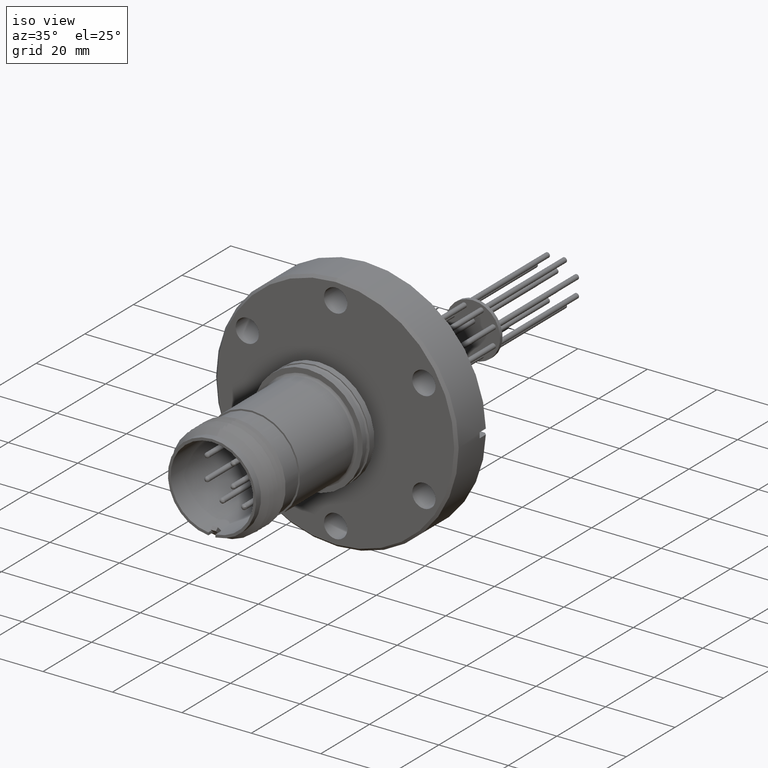
[diagram: clean part render]
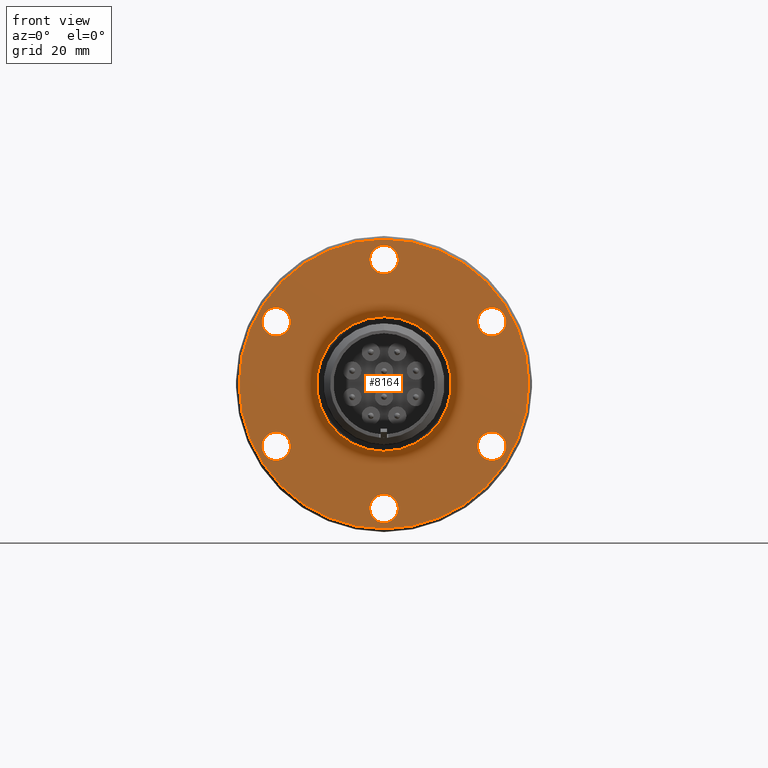
[diagram: tour spotlight — one face highlighted and labeled with its STEP entity id]
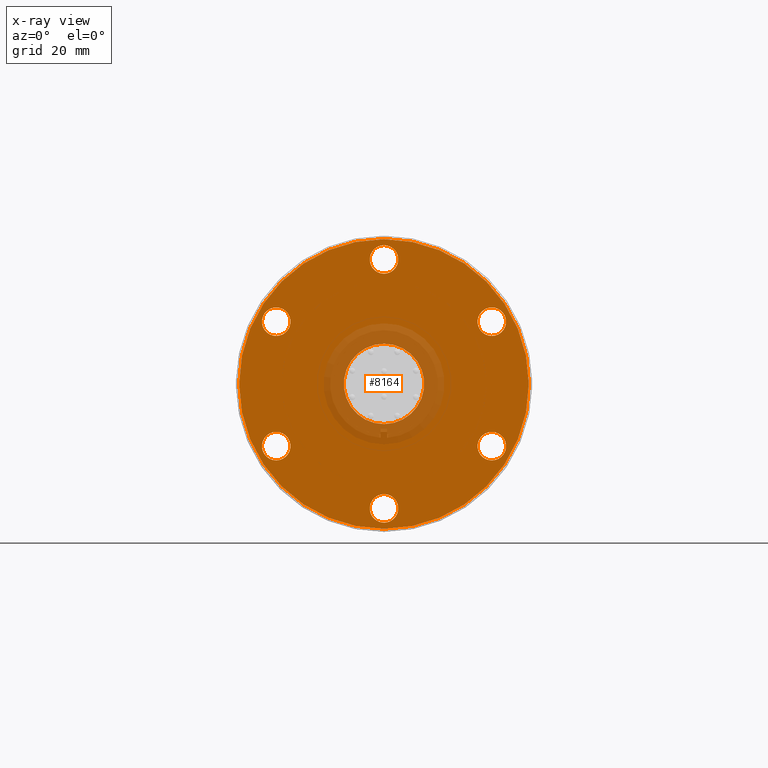
[diagram: x-ray of the same camera — body ghosted, this tour face saturated]
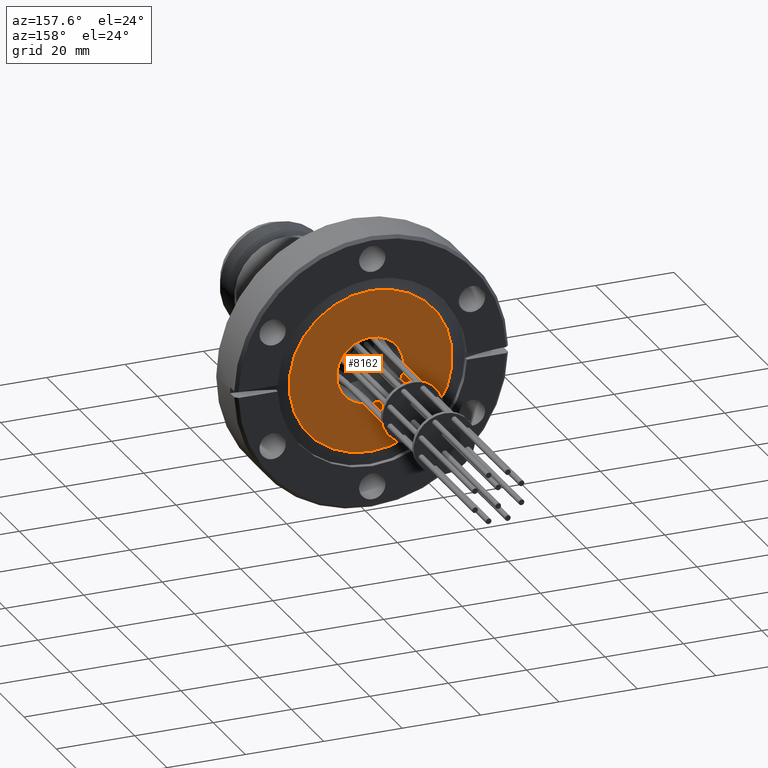
[diagram: tour spotlight — one face highlighted and labeled with its STEP entity id]
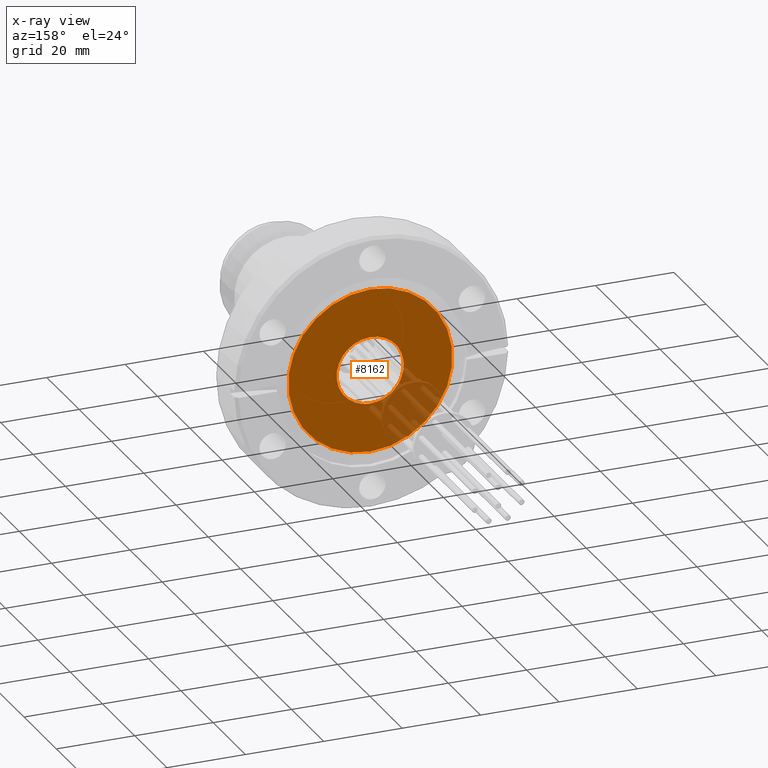
[diagram: x-ray of the same camera — body ghosted, this tour face saturated]
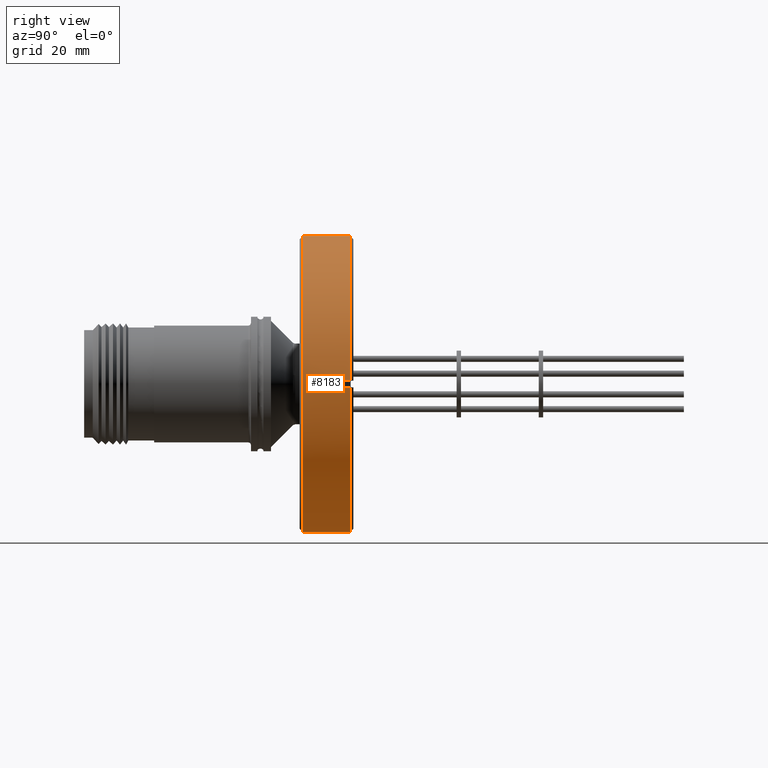
[diagram: tour spotlight — one face highlighted and labeled with its STEP entity id]
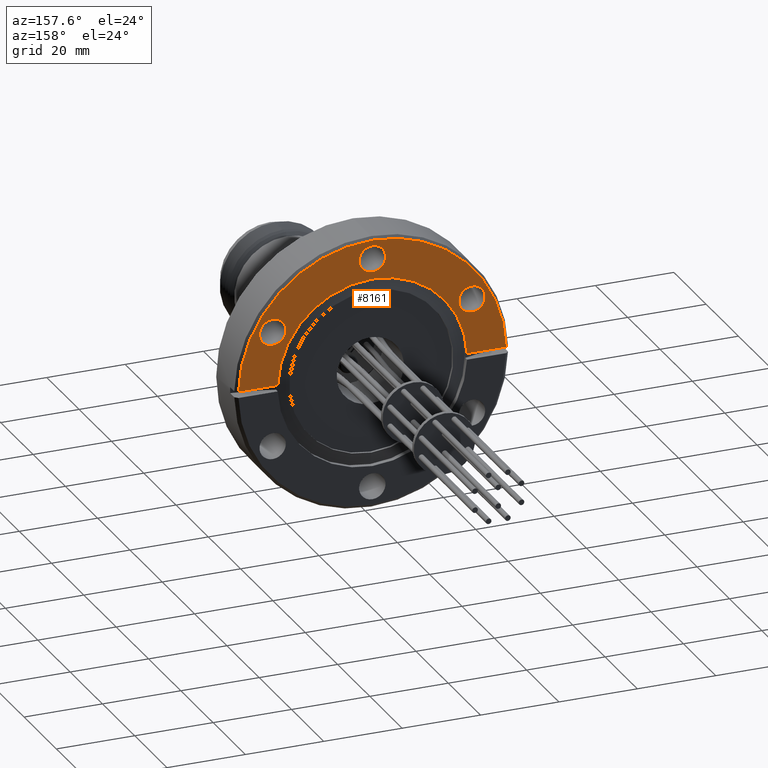
[diagram: tour spotlight — one face highlighted and labeled with its STEP entity id]
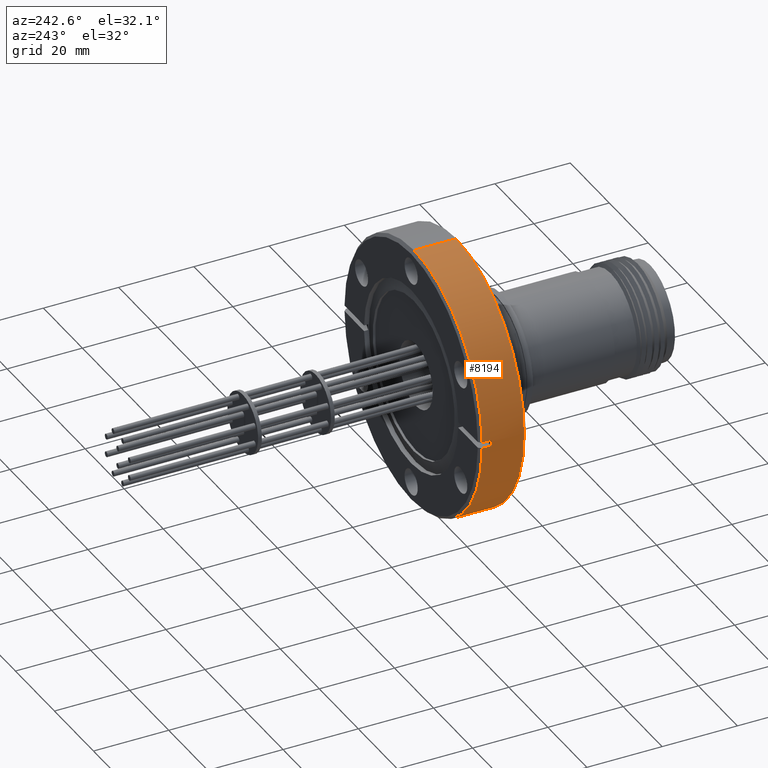
[diagram: tour spotlight — one face highlighted and labeled with its STEP entity id]
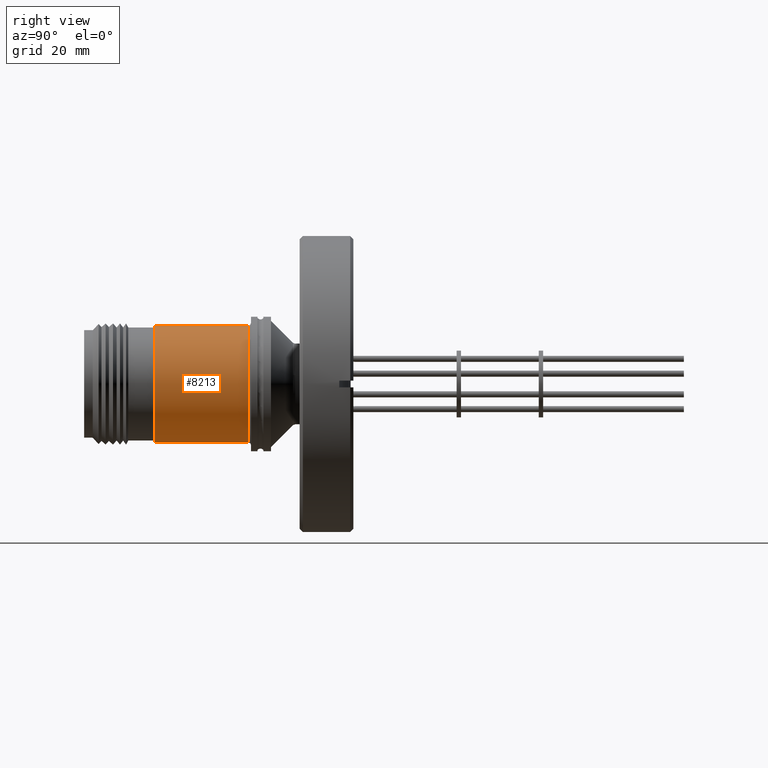
[diagram: tour spotlight — one face highlighted and labeled with its STEP entity id]
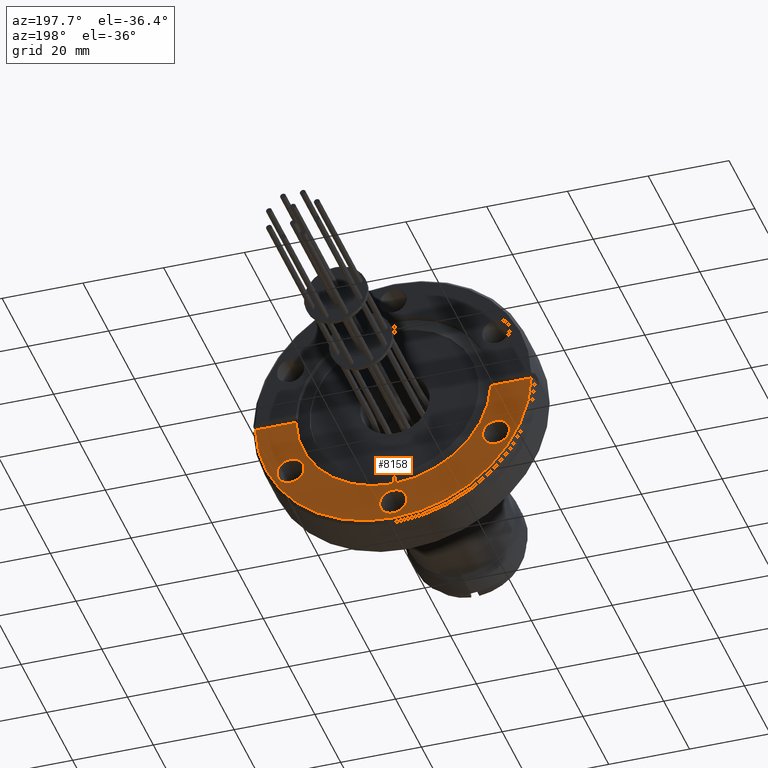
[diagram: tour spotlight — one face highlighted and labeled with its STEP entity id]
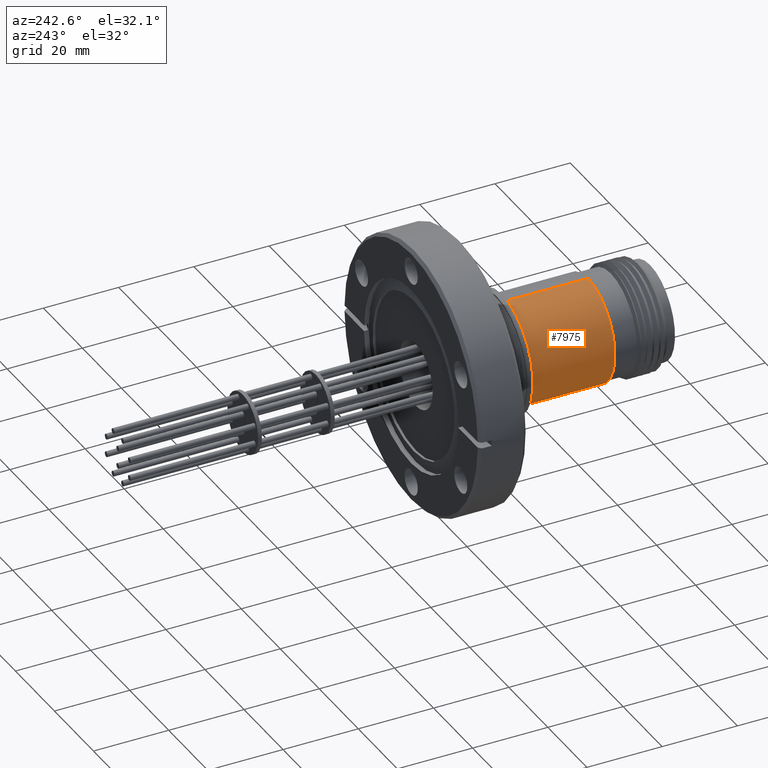
[diagram: tour spotlight — one face highlighted and labeled with its STEP entity id]
A machine part: a face-by-face anatomy tour. The part has 427 B-rep faces; the first image is the clean iso view, then the 8 largest visible faces are spotlighted one at a time (largest first), each with its STEP entity span.

Face 1 — front view, entity #8164. An x-ray twin of the same camera follows (body ghosted, this face saturated) — the face is partly hidden behind the body. In plain terms, the highlighted planar face has unit normal (0, -1, 0).
Definition (entity closure, byte-faithful):
#543 = FACE_BOUND ( 'NONE', #13092, .T. ) ;
#544 = FACE_BOUND ( 'NONE', #13084, .T. ) ;
#547 = FACE_BOUND ( 'NONE', #13077, .T. ) ;
#548 = FACE_BOUND ( 'NONE', #13169, .T. ) ;
#549 = FACE_BOUND ( 'NONE', #13136, .T. ) ;
#550 = FACE_BOUND ( 'NONE', #12999, .T. ) ;
#552 = FACE_BOUND ( 'NONE', #13163, .T. ) ;
#553 = FACE_OUTER_BOUND ( 'NONE', #13058, .T. ) ;
#994 = CIRCLE ( 'NONE', #2222, 1.344999999999999800 ) ;
#1003 = CIRCLE ( 'NONE', #2224, 0.1325000000000000300 ) ;
#1009 = CIRCLE ( 'NONE', #2226, 0.1325000000000000600 ) ;
#1015 = CIRCLE ( 'NONE', #2228, 0.1324999999999999800 ) ;
#1021 = CIRCLE ( 'NONE', #2230, 0.1325000000000000300 ) ;
#1027 = CIRCLE ( 'NONE', #2232, 0.1324999999999999800 ) ;
#1033 = CIRCLE ( 'NONE', #2234, 0.1325000000000000100 ) ;
#1480 = VERTEX_POINT ( 'NONE', #12711 ) ;
#1481 = VERTEX_POINT ( 'NONE', #12973 ) ;
#1517 = VERTEX_POINT ( 'NONE', #12937 ) ;
#1521 = VERTEX_POINT ( 'NONE', #12933 ) ;
#1524 = VERTEX_POINT ( 'NONE', #12930 ) ;
#1525 = VERTEX_POINT ( 'NONE', #12929 ) ;
#1531 = VERTEX_POINT ( 'NONE', #12922 ) ;
#1532 = VERTEX_POINT ( 'NONE', #12920 ) ;
#1549 = VERTEX_POINT ( 'NONE', #12894 ) ;
#1576 = VERTEX_POINT ( 'NONE', #12863 ) ;
#1593 = VERTEX_POINT ( 'NONE', #12846 ) ;
#1644 = VERTEX_POINT ( 'NONE', #12790 ) ;
#1663 = VERTEX_POINT ( 'NONE', #12770 ) ;
#2105 = EDGE_CURVE ( 'NONE', #1480, #2945, #994, .T. ) ;
#2109 = EDGE_CURVE ( 'NONE', #1521, #1517, #1003, .T. ) ;
#2113 = EDGE_CURVE ( 'NONE', #1531, #1593, #1009, .T. ) ;
#2117 = EDGE_CURVE ( 'NONE', #1532, #1549, #1015, .T. ) ;
#2121 = EDGE_CURVE ( 'NONE', #1524, #1525, #1021, .T. ) ;
#2125 = EDGE_CURVE ( 'NONE', #2944, #1481, #1027, .T. ) ;
#2129 = EDGE_CURVE ( 'NONE', #1663, #9556, #1033, .T. ) ;
#2222 = AXIS2_PLACEMENT_3D ( 'NONE', #2788, #2787, #2782 ) ;
#2224 = AXIS2_PLACEMENT_3D ( 'NONE', #2767, #2766, #2762 ) ;
#2226 = AXIS2_PLACEMENT_3D ( 'NONE', #2742, #2739, #2738 ) ;
#2228 = AXIS2_PLACEMENT_3D ( 'NONE', #2725, #2724, #2723 ) ;
#2230 = AXIS2_PLACEMENT_3D ( 'NONE', #2706, #2705, #2704 ) ;
#2232 = AXIS2_PLACEMENT_3D ( 'NONE', #2687, #2686, #2685 ) ;
#2234 = AXIS2_PLACEMENT_3D ( 'NONE', #2670, #2668, #2667 ) ;
#2667 = DIRECTION ( 'NONE',  ( 0.8660254037844329300, 0.0000000000000000000, 0.5000000000000098800 ) ) ;
#2668 = DIRECTION ( 'NONE',  ( 0.0000000000000000000, 1.000000000000000000, 0.0000000000000000000 ) ) ;
#2670 = CARTESIAN_POINT ( 'NONE',  ( -1.001125366774804600, 1.251650882913234900, -0.5780000000000117300 ) ) ;
#2685 = DIRECTION ( 'NONE',  ( 0.8660254037844433700, 0.0000000000000000000, -0.4999999999999919500 ) ) ;
#2686 = DIRECTION ( 'NONE',  ( 0.0000000000000000000, 1.000000000000000000, 0.0000000000000000000 ) ) ;
#2687 = CARTESIAN_POINT ( 'NONE',  ( -1.001125366774816600, 1.251650882913234900, 0.5779999999999908500 ) ) ;
#2704 = DIRECTION ( 'NONE',  ( 6.982962677686261200E-015, 0.0000000000000000000, -1.000000000000000000 ) ) ;
#2705 = DIRECTION ( 'NONE',  ( 0.0000000000000000000, 1.000000000000000000, 0.0000000000000000000 ) ) ;
#2706 = CARTESIAN_POINT ( 'NONE',  ( -8.072304855405326000E-015, 1.251650882913234900, 1.156000000000000100 ) ) ;
#2723 = DIRECTION ( 'NONE',  ( -0.8660254037844361500, 0.0000000000000000000, -0.5000000000000043300 ) ) ;
#2724 = DIRECTION ( 'NONE',  ( 0.0000000000000000000, 1.000000000000000000, 0.0000000000000000000 ) ) ;
#2725 = CARTESIAN_POINT ( 'NONE',  ( 1.001125366774808800, 1.251650882913234900, 0.5780000000000048400 ) ) ;
#2738 = DIRECTION ( 'NONE',  ( -0.8660254037844398200, 0.0000000000000000000, 0.4999999999999977800 ) ) ;
#2739 = DIRECTION ( 'NONE',  ( 0.0000000000000000000, 1.000000000000000000, 0.0000000000000000000 ) ) ;
#2742 = CARTESIAN_POINT ( 'NONE',  ( 1.001125366774812600, 1.251650882913234900, -0.5779999999999977400 ) ) ;
#2762 = DIRECTION ( 'NONE',  ( 0.0000000000000000000, 0.0000000000000000000, 1.000000000000000000 ) ) ;
#2766 = DIRECTION ( 'NONE',  ( 0.0000000000000000000, 1.000000000000000000, 0.0000000000000000000 ) ) ;
#2767 = CARTESIAN_POINT ( 'NONE',  ( 0.0000000000000000000, 1.251650882913234900, -1.156000000000000100 ) ) ;
#2782 = DIRECTION ( 'NONE',  ( 0.0000000000000000000, 0.0000000000000000000, 1.000000000000000000 ) ) ;
#2787 = DIRECTION ( 'NONE',  ( -0.0000000000000000000, 1.000000000000000000, -0.0000000000000000000 ) ) ;
#2788 = CARTESIAN_POINT ( 'NONE',  ( 0.0000000000000000000, 1.251650882913234900, 0.0000000000000000000 ) ) ;
#2944 = VERTEX_POINT ( 'NONE', #11926 ) ;
#2945 = VERTEX_POINT ( 'NONE', #11967 ) ;
#4305 = CARTESIAN_POINT ( 'NONE',  ( -1.001125366774804600, 1.251650882913234900, -0.4455000000000117800 ) ) ;
#5074 = CIRCLE ( 'NONE', #11159, 1.344999999999999800 ) ;
#5075 = CIRCLE ( 'NONE', #11160, 0.1325000000000000300 ) ;
#5076 = CIRCLE ( 'NONE', #11161, 0.1325000000000000600 ) ;
#5077 = CIRCLE ( 'NONE', #11162, 0.1324999999999999800 ) ;
#5078 = CIRCLE ( 'NONE', #11163, 0.1325000000000000300 ) ;
#5079 = CIRCLE ( 'NONE', #11164, 0.1324999999999999800 ) ;
#5080 = CIRCLE ( 'NONE', #11165, 0.1325000000000000100 ) ;
#5081 = CIRCLE ( 'NONE', #11166, 0.3735000000000008900 ) ;
#5545 = DIRECTION ( 'NONE',  ( 0.0000000000000000000, -0.0000000000000000000, -1.000000000000000000 ) ) ;
#5547 = PLANE ( 'NONE',  #8980 ) ;
#5550 = CARTESIAN_POINT ( 'NONE',  ( -1.344999999999999800, 1.251650882913234900, 0.0000000000000000000 ) ) ;
#5556 = DIRECTION ( 'NONE',  ( 0.0000000000000000000, -1.000000000000000000, 0.0000000000000000000 ) ) ;
#6811 = ORIENTED_EDGE ( 'NONE', *, *, #2129, .T. ) ;
#6867 = ORIENTED_EDGE ( 'NONE', *, *, #10105, .F. ) ;
#6877 = ORIENTED_EDGE ( 'NONE', *, *, #10291, .F. ) ;
#6886 = ORIENTED_EDGE ( 'NONE', *, *, #10294, .T. ) ;
#6892 = ORIENTED_EDGE ( 'NONE', *, *, #10295, .T. ) ;
#6894 = ORIENTED_EDGE ( 'NONE', *, *, #10293, .T. ) ;
#6900 = ORIENTED_EDGE ( 'NONE', *, *, #2125, .T. ) ;
#6910 = ORIENTED_EDGE ( 'NONE', *, *, #2117, .T. ) ;
#6935 = ORIENTED_EDGE ( 'NONE', *, *, #2109, .T. ) ;
#6938 = ORIENTED_EDGE ( 'NONE', *, *, #2121, .T. ) ;
#6941 = ORIENTED_EDGE ( 'NONE', *, *, #10297, .T. ) ;
#6942 = ORIENTED_EDGE ( 'NONE', *, *, #10296, .T. ) ;
#6954 = ORIENTED_EDGE ( 'NONE', *, *, #2113, .T. ) ;
#7014 = ORIENTED_EDGE ( 'NONE', *, *, #10298, .F. ) ;
#7047 = ORIENTED_EDGE ( 'NONE', *, *, #10292, .T. ) ;
#7259 = ORIENTED_EDGE ( 'NONE', *, *, #2105, .F. ) ;
#8164 = ADVANCED_FACE ( 'NONE', ( #547, #543, #549, #544, #550, #548, #552, #553 ), #5547, .T. ) ;
#8980 = AXIS2_PLACEMENT_3D ( 'NONE', #5550, #5556, #5545 ) ;
#9186 = CARTESIAN_POINT ( 'NONE',  ( 0.0000000000000000000, 1.251650882913234900, 0.0000000000000000000 ) ) ;
#9187 = DIRECTION ( 'NONE',  ( 0.0000000000000000000, -1.000000000000000000, 0.0000000000000000000 ) ) ;
#9189 = DIRECTION ( 'NONE',  ( 0.0000000000000000000, 0.0000000000000000000, -1.000000000000000000 ) ) ;
#9556 = VERTEX_POINT ( 'NONE', #4305 ) ;
#10105 = EDGE_CURVE ( 'NONE', #1576, #1644, #10795, .T. ) ;
#10291 = EDGE_CURVE ( 'NONE', #2945, #1480, #5074, .T. ) ;
#10292 = EDGE_CURVE ( 'NONE', #1517, #1521, #5075, .T. ) ;
#10293 = EDGE_CURVE ( 'NONE', #1593, #1531, #5076, .T. ) ;
#10294 = EDGE_CURVE ( 'NONE', #1549, #1532, #5077, .T. ) ;
#10295 = EDGE_CURVE ( 'NONE', #1525, #1524, #5078, .T. ) ;
#10296 = EDGE_CURVE ( 'NONE', #1481, #2944, #5079, .T. ) ;
#10297 = EDGE_CURVE ( 'NONE', #9556, #1663, #5080, .T. ) ;
#10298 = EDGE_CURVE ( 'NONE', #1644, #1576, #5081, .T. ) ;
#10795 = CIRCLE ( 'NONE', #11049, 0.3735000000000008900 ) ;
#11049 = AXIS2_PLACEMENT_3D ( 'NONE', #9186, #9187, #9189 ) ;
#11159 = AXIS2_PLACEMENT_3D ( 'NONE', #13695, #13696, #13697 ) ;
#11160 = AXIS2_PLACEMENT_3D ( 'NONE', #13698, #13699, #13700 ) ;
#11161 = AXIS2_PLACEMENT_3D ( 'NONE', #13701, #13702, #13703 ) ;
#11162 = AXIS2_PLACEMENT_3D ( 'NONE', #13704, #13705, #13706 ) ;
#11163 = AXIS2_PLACEMENT_3D ( 'NONE', #13707, #13708, #13709 ) ;
#11164 = AXIS2_PLACEMENT_3D ( 'NONE', #13710, #13711, #13712 ) ;
#11165 = AXIS2_PLACEMENT_3D ( 'NONE', #13713, #13714, #13715 ) ;
#11166 = AXIS2_PLACEMENT_3D ( 'NONE', #13716, #13717, #13718 ) ;
#11926 = CARTESIAN_POINT ( 'NONE',  ( -1.001125366774816600, 1.251650882913234900, 0.4454999999999907900 ) ) ;
#11967 = CARTESIAN_POINT ( 'NONE',  ( 1.665519646840399900E-016, 1.251650882913234900, -1.344999999999999800 ) ) ;
#12711 = CARTESIAN_POINT ( 'NONE',  ( 0.0000000000000000000, 1.251650882913234900, 1.344999999999999800 ) ) ;
#12770 = CARTESIAN_POINT ( 'NONE',  ( -1.001125366774804600, 1.251650882913234900, -0.7105000000000116800 ) ) ;
#12790 = CARTESIAN_POINT ( 'NONE',  ( 4.574055794815374400E-017, 1.251650882913234900, 0.3735000000000008900 ) ) ;
#12846 = CARTESIAN_POINT ( 'NONE',  ( 1.001125366774812600, 1.251650882913234900, -0.4454999999999977300 ) ) ;
#12863 = CARTESIAN_POINT ( 'NONE',  ( 0.0000000000000000000, 1.251650882913234900, -0.3735000000000008900 ) ) ;
#12894 = CARTESIAN_POINT ( 'NONE',  ( 1.001125366774808800, 1.251650882913234900, 0.7105000000000049100 ) ) ;
#12920 = CARTESIAN_POINT ( 'NONE',  ( 1.001125366774808800, 1.251650882913234900, 0.4455000000000048400 ) ) ;
#12922 = CARTESIAN_POINT ( 'NONE',  ( 1.001125366774812600, 1.251650882913234900, -0.7104999999999978000 ) ) ;
#12929 = CARTESIAN_POINT ( 'NONE',  ( -8.072304855405326000E-015, 1.251650882913234900, 1.288500000000000200 ) ) ;
#12930 = CARTESIAN_POINT ( 'NONE',  ( -8.056078285316624400E-015, 1.251650882913234900, 1.023500000000000100 ) ) ;
#12933 = CARTESIAN_POINT ( 'NONE',  ( 1.622657008870242800E-017, 1.251650882913234900, -1.288500000000000200 ) ) ;
#12937 = CARTESIAN_POINT ( 'NONE',  ( 0.0000000000000000000, 1.251650882913234900, -1.023500000000000100 ) ) ;
#12973 = CARTESIAN_POINT ( 'NONE',  ( -1.001125366774816600, 1.251650882913234900, 0.7104999999999908100 ) ) ;
#12999 = EDGE_LOOP ( 'NONE', ( #6886, #6910 ) ) ;
#13058 = EDGE_LOOP ( 'NONE', ( #7259, #6877 ) ) ;
#13077 = EDGE_LOOP ( 'NONE', ( #6867, #7014 ) ) ;
#13084 = EDGE_LOOP ( 'NONE', ( #6892, #6938 ) ) ;
#13092 = EDGE_LOOP ( 'NONE', ( #6941, #6811 ) ) ;
#13136 = EDGE_LOOP ( 'NONE', ( #6942, #6900 ) ) ;
#13163 = EDGE_LOOP ( 'NONE', ( #7047, #6935 ) ) ;
#13169 = EDGE_LOOP ( 'NONE', ( #6894, #6954 ) ) ;
#13695 = CARTESIAN_POINT ( 'NONE',  ( 0.0000000000000000000, 1.251650882913234900, 0.0000000000000000000 ) ) ;
#13696 = DIRECTION ( 'NONE',  ( -0.0000000000000000000, 1.000000000000000000, -0.0000000000000000000 ) ) ;
#13697 = DIRECTION ( 'NONE',  ( 0.0000000000000000000, 0.0000000000000000000, 1.000000000000000000 ) ) ;
#13698 = CARTESIAN_POINT ( 'NONE',  ( 0.0000000000000000000, 1.251650882913234900, -1.156000000000000100 ) ) ;
#13699 = DIRECTION ( 'NONE',  ( 0.0000000000000000000, 1.000000000000000000, 0.0000000000000000000 ) ) ;
#13700 = DIRECTION ( 'NONE',  ( 0.0000000000000000000, 0.0000000000000000000, 1.000000000000000000 ) ) ;
#13701 = CARTESIAN_POINT ( 'NONE',  ( 1.001125366774812600, 1.251650882913234900, -0.5779999999999977400 ) ) ;
#13702 = DIRECTION ( 'NONE',  ( 0.0000000000000000000, 1.000000000000000000, 0.0000000000000000000 ) ) ;
#13703 = DIRECTION ( 'NONE',  ( -0.8660254037844398200, 0.0000000000000000000, 0.4999999999999977800 ) ) ;
#13704 = CARTESIAN_POINT ( 'NONE',  ( 1.001125366774808800, 1.251650882913234900, 0.5780000000000048400 ) ) ;
#13705 = DIRECTION ( 'NONE',  ( 0.0000000000000000000, 1.000000000000000000, 0.0000000000000000000 ) ) ;
#13706 = DIRECTION ( 'NONE',  ( -0.8660254037844361500, 0.0000000000000000000, -0.5000000000000043300 ) ) ;
#13707 = CARTESIAN_POINT ( 'NONE',  ( -8.072304855405326000E-015, 1.251650882913234900, 1.156000000000000100 ) ) ;
#13708 = DIRECTION ( 'NONE',  ( 0.0000000000000000000, 1.000000000000000000, 0.0000000000000000000 ) ) ;
#13709 = DIRECTION ( 'NONE',  ( 6.982962677686261200E-015, 0.0000000000000000000, -1.000000000000000000 ) ) ;
#13710 = CARTESIAN_POINT ( 'NONE',  ( -1.001125366774816600, 1.251650882913234900, 0.5779999999999908500 ) ) ;
#13711 = DIRECTION ( 'NONE',  ( 0.0000000000000000000, 1.000000000000000000, 0.0000000000000000000 ) ) ;
#13712 = DIRECTION ( 'NONE',  ( 0.8660254037844433700, 0.0000000000000000000, -0.4999999999999919500 ) ) ;
#13713 = CARTESIAN_POINT ( 'NONE',  ( -1.001125366774804600, 1.251650882913234900, -0.5780000000000117300 ) ) ;
#13714 = DIRECTION ( 'NONE',  ( 0.0000000000000000000, 1.000000000000000000, 0.0000000000000000000 ) ) ;
#13715 = DIRECTION ( 'NONE',  ( 0.8660254037844329300, 0.0000000000000000000, 0.5000000000000098800 ) ) ;
#13716 = CARTESIAN_POINT ( 'NONE',  ( 0.0000000000000000000, 1.251650882913234900, 0.0000000000000000000 ) ) ;
#13717 = DIRECTION ( 'NONE',  ( 0.0000000000000000000, -1.000000000000000000, 0.0000000000000000000 ) ) ;
#13718 = DIRECTION ( 'NONE',  ( 0.0000000000000000000, 0.0000000000000000000, -1.000000000000000000 ) ) ;

Face 2 — auxiliary view, entity #8162. An x-ray twin of the same camera follows (body ghosted, this face saturated) — the face is partly hidden behind the body. In plain terms, the highlighted planar face has unit normal (-0, 1, 0).
Definition (entity closure, byte-faithful):
#540 = FACE_OUTER_BOUND ( 'NONE', #13080, .T. ) ;
#546 = FACE_BOUND ( 'NONE', #13079, .T. ) ;
#991 = CIRCLE ( 'NONE', #2220, 0.8249999999999998400 ) ;
#1518 = VERTEX_POINT ( 'NONE', #12936 ) ;
#1545 = VERTEX_POINT ( 'NONE', #12898 ) ;
#2101 = EDGE_CURVE ( 'NONE', #1545, #1518, #991, .T. ) ;
#2220 = AXIS2_PLACEMENT_3D ( 'NONE', #2804, #2803, #2802 ) ;
#2802 = DIRECTION ( 'NONE',  ( 0.0000000000000000000, 0.0000000000000000000, 1.000000000000000000 ) ) ;
#2803 = DIRECTION ( 'NONE',  ( -0.0000000000000000000, 1.000000000000000000, -0.0000000000000000000 ) ) ;
#2804 = CARTESIAN_POINT ( 'NONE',  ( 0.0000000000000000000, 1.700650882913235000, 0.0000000000000000000 ) ) ;
#3181 = CARTESIAN_POINT ( 'NONE',  ( 4.133182947122326400E-017, 1.700650882913234500, 0.3375000000000007400 ) ) ;
#3195 = CARTESIAN_POINT ( 'NONE',  ( 0.0000000000000000000, 1.700650882913234500, -0.3375000000000007400 ) ) ;
#4964 = CARTESIAN_POINT ( 'NONE',  ( 0.0000000000000000000, 1.700650882913234500, 0.0000000000000000000 ) ) ;
#4965 = DIRECTION ( 'NONE',  ( 0.0000000000000000000, -1.000000000000000000, 0.0000000000000000000 ) ) ;
#4966 = DIRECTION ( 'NONE',  ( 0.0000000000000000000, 0.0000000000000000000, -1.000000000000000000 ) ) ;
#5082 = CIRCLE ( 'NONE', #11167, 0.3375000000000007400 ) ;
#5083 = CIRCLE ( 'NONE', #11168, 0.8249999999999998400 ) ;
#5553 = DIRECTION ( 'NONE',  ( 0.0000000000000000000, 0.0000000000000000000, 1.000000000000000000 ) ) ;
#5554 = DIRECTION ( 'NONE',  ( -0.0000000000000000000, 1.000000000000000000, 0.0000000000000000000 ) ) ;
#5559 = PLANE ( 'NONE',  #8977 ) ;
#5561 = CARTESIAN_POINT ( 'NONE',  ( -0.8249999999999998400, 1.700650882913235000, 0.0000000000000000000 ) ) ;
#6889 = ORIENTED_EDGE ( 'NONE', *, *, #9822, .T. ) ;
#6957 = ORIENTED_EDGE ( 'NONE', *, *, #10299, .T. ) ;
#7226 = ORIENTED_EDGE ( 'NONE', *, *, #2101, .T. ) ;
#7239 = ORIENTED_EDGE ( 'NONE', *, *, #10300, .T. ) ;
#8162 = ADVANCED_FACE ( 'NONE', ( #540, #546 ), #5559, .T. ) ;
#8977 = AXIS2_PLACEMENT_3D ( 'NONE', #5561, #5554, #5553 ) ;
#9428 = AXIS2_PLACEMENT_3D ( 'NONE', #4964, #4965, #4966 ) ;
#9822 = EDGE_CURVE ( 'NONE', #11568, #11582, #10413, .T. ) ;
#10299 = EDGE_CURVE ( 'NONE', #11582, #11568, #5082, .T. ) ;
#10300 = EDGE_CURVE ( 'NONE', #1518, #1545, #5083, .T. ) ;
#10413 = CIRCLE ( 'NONE', #9428, 0.3375000000000007400 ) ;
#11167 = AXIS2_PLACEMENT_3D ( 'NONE', #13719, #13720, #13721 ) ;
#11168 = AXIS2_PLACEMENT_3D ( 'NONE', #13722, #13723, #13724 ) ;
#11568 = VERTEX_POINT ( 'NONE', #3181 ) ;
#11582 = VERTEX_POINT ( 'NONE', #3195 ) ;
#12898 = CARTESIAN_POINT ( 'NONE',  ( 1.010333609296566100E-016, 1.700650882913235000, -0.8249999999999998400 ) ) ;
#12936 = CARTESIAN_POINT ( 'NONE',  ( 0.0000000000000000000, 1.700650882913235000, 0.8249999999999998400 ) ) ;
#13079 = EDGE_LOOP ( 'NONE', ( #6957, #6889 ) ) ;
#13080 = EDGE_LOOP ( 'NONE', ( #7239, #7226 ) ) ;
#13719 = CARTESIAN_POINT ( 'NONE',  ( 0.0000000000000000000, 1.700650882913234500, 0.0000000000000000000 ) ) ;
#13720 = DIRECTION ( 'NONE',  ( 0.0000000000000000000, -1.000000000000000000, 0.0000000000000000000 ) ) ;
#13721 = DIRECTION ( 'NONE',  ( 0.0000000000000000000, 0.0000000000000000000, -1.000000000000000000 ) ) ;
#13722 = CARTESIAN_POINT ( 'NONE',  ( 0.0000000000000000000, 1.700650882913235000, 0.0000000000000000000 ) ) ;
#13723 = DIRECTION ( 'NONE',  ( -0.0000000000000000000, 1.000000000000000000, -0.0000000000000000000 ) ) ;
#13724 = DIRECTION ( 'NONE',  ( 0.0000000000000000000, 0.0000000000000000000, 1.000000000000000000 ) ) ;

Face 3 — right view, entity #8183. In plain terms, the highlighted cylindrical surface (partial cylindrical patch) has radius 34.925 mm, axis along (-0, 1, -0).
Definition (entity closure, byte-faithful):
#581 = FACE_OUTER_BOUND ( 'NONE', #13133, .T. ) ;
#587 = CYLINDRICAL_SURFACE ( 'NONE', #9023, 1.374999999999999800 ) ;
#968 = LINE ( 'NONE', #2881, #973 ) ;
#971 = CIRCLE ( 'NONE', #2215, 1.374999999999999800 ) ;
#972 = LINE ( 'NONE', #2871, #976 ) ;
#973 = VECTOR ( 'NONE', #2892, 39.37007874015748100 ) ;
#974 = LINE ( 'NONE', #2849, #981 ) ;
#975 = LINE ( 'NONE', #2862, #978 ) ;
#976 = VECTOR ( 'NONE', #2876, 39.37007874015748100 ) ;
#977 = CIRCLE ( 'NONE', #2216, 1.374999999999999800 ) ;
#978 = VECTOR ( 'NONE', #2856, 39.37007874015748100 ) ;
#981 = VECTOR ( 'NONE', #2854, 39.37007874015748100 ) ;
#993 = CIRCLE ( 'NONE', #2221, 1.374999999999999800 ) ;
#1492 = VERTEX_POINT ( 'NONE', #12962 ) ;
#1520 = VERTEX_POINT ( 'NONE', #12934 ) ;
#1597 = VERTEX_POINT ( 'NONE', #12842 ) ;
#1598 = VERTEX_POINT ( 'NONE', #12841 ) ;
#1693 = VERTEX_POINT ( 'NONE', #12723 ) ;
#1700 = VERTEX_POINT ( 'NONE', #12714 ) ;
#2087 = EDGE_CURVE ( 'NONE', #1598, #9558, #968, .T. ) ;
#2088 = EDGE_CURVE ( 'NONE', #9558, #1693, #971, .T. ) ;
#2089 = EDGE_CURVE ( 'NONE', #1693, #1700, #972, .T. ) ;
#2090 = EDGE_CURVE ( 'NONE', #1700, #1492, #7891, .T. ) ;
#2091 = EDGE_CURVE ( 'NONE', #2946, #1492, #975, .T. ) ;
#2092 = EDGE_CURVE ( 'NONE', #2946, #1520, #977, .T. ) ;
#2093 = EDGE_CURVE ( 'NONE', #1597, #1520, #974, .T. ) ;
#2103 = EDGE_CURVE ( 'NONE', #1598, #1597, #993, .T. ) ;
#2215 = AXIS2_PLACEMENT_3D ( 'NONE', #2869, #2868, #2864 ) ;
#2216 = AXIS2_PLACEMENT_3D ( 'NONE', #2848, #2844, #2843 ) ;
#2221 = AXIS2_PLACEMENT_3D ( 'NONE', #2794, #2793, #2792 ) ;
#2792 = DIRECTION ( 'NONE',  ( 0.0000000000000000000, 0.0000000000000000000, 1.000000000000000000 ) ) ;
#2793 = DIRECTION ( 'NONE',  ( -0.0000000000000000000, 1.000000000000000000, -0.0000000000000000000 ) ) ;
#2794 = CARTESIAN_POINT ( 'NONE',  ( 0.0000000000000000000, 1.281650882913234700, 0.0000000000000000000 ) ) ;
#2843 = DIRECTION ( 'NONE',  ( 0.0000000000000000000, 0.0000000000000000000, 1.000000000000000000 ) ) ;
#2844 = DIRECTION ( 'NONE',  ( -0.0000000000000000000, 1.000000000000000000, -0.0000000000000000000 ) ) ;
#2848 = CARTESIAN_POINT ( 'NONE',  ( 0.0000000000000000000, 1.721650882913234600, 0.0000000000000000000 ) ) ;
#2849 = CARTESIAN_POINT ( 'NONE',  ( 1.683889348827610300E-016, 2.424772042217394400, -1.374999999999999800 ) ) ;
#2854 = DIRECTION ( 'NONE',  ( -0.0000000000000000000, 1.000000000000000000, -0.0000000000000000000 ) ) ;
#2856 = DIRECTION ( 'NONE',  ( 0.0000000000000000000, -1.000000000000000000, 0.0000000000000000000 ) ) ;
#2857 = CARTESIAN_POINT ( 'NONE',  ( 1.374650501036536000, 1.620319653482952300, -0.03100000000000000000 ) ) ;
#2858 = CARTESIAN_POINT ( 'NONE',  ( 1.375116922606231400, 1.620286216282814400, -0.01031720501689926600 ) ) ;
#2862 = CARTESIAN_POINT ( 'NONE',  ( 1.374650501036536000, 2.424772042217394400, -0.03100000000000000000 ) ) ;
#2863 = CARTESIAN_POINT ( 'NONE',  ( 1.374650501036536000, 1.620319653482952300, 0.03100000000000000000 ) ) ;
#2864 = DIRECTION ( 'NONE',  ( 0.0000000000000000000, 0.0000000000000000000, 1.000000000000000000 ) ) ;
#2868 = DIRECTION ( 'NONE',  ( -0.0000000000000000000, 1.000000000000000000, -0.0000000000000000000 ) ) ;
#2869 = CARTESIAN_POINT ( 'NONE',  ( 0.0000000000000000000, 1.721650882913234600, 0.0000000000000000000 ) ) ;
#2871 = CARTESIAN_POINT ( 'NONE',  ( 1.374650501036536000, 2.424772042217394400, 0.03100000000000000000 ) ) ;
#2874 = CARTESIAN_POINT ( 'NONE',  ( 1.375116195747683400, 1.620286268390427600, 0.01034943651584263300 ) ) ;
#2876 = DIRECTION ( 'NONE',  ( 0.0000000000000000000, -1.000000000000000000, 0.0000000000000000000 ) ) ;
#2881 = CARTESIAN_POINT ( 'NONE',  ( 0.0000000000000000000, 2.424772042217394400, 1.374999999999999800 ) ) ;
#2892 = DIRECTION ( 'NONE',  ( -0.0000000000000000000, 1.000000000000000000, -0.0000000000000000000 ) ) ;
#2946 = VERTEX_POINT ( 'NONE', #11909 ) ;
#4304 = CARTESIAN_POINT ( 'NONE',  ( 0.0000000000000000000, 1.721650882913234600, 1.374999999999999800 ) ) ;
#5472 = CARTESIAN_POINT ( 'NONE',  ( 0.0000000000000000000, 2.424772042217394400, 0.0000000000000000000 ) ) ;
#5474 = DIRECTION ( 'NONE',  ( -0.0000000000000000000, 1.000000000000000000, -0.0000000000000000000 ) ) ;
#5476 = DIRECTION ( 'NONE',  ( 0.0000000000000000000, 0.0000000000000000000, 1.000000000000000000 ) ) ;
#6721 = ORIENTED_EDGE ( 'NONE', *, *, #2092, .F. ) ;
#6795 = ORIENTED_EDGE ( 'NONE', *, *, #2091, .T. ) ;
#6828 = ORIENTED_EDGE ( 'NONE', *, *, #2103, .T. ) ;
#6862 = ORIENTED_EDGE ( 'NONE', *, *, #2089, .F. ) ;
#6882 = ORIENTED_EDGE ( 'NONE', *, *, #2088, .F. ) ;
#6932 = ORIENTED_EDGE ( 'NONE', *, *, #2087, .F. ) ;
#6955 = ORIENTED_EDGE ( 'NONE', *, *, #2090, .F. ) ;
#7228 = ORIENTED_EDGE ( 'NONE', *, *, #2093, .T. ) ;
#7891 = B_SPLINE_CURVE_WITH_KNOTS ( 'NONE', 3,
 ( #2863, #2874, #2858, #2857 ),
 .UNSPECIFIED., .F., .F.,
 ( 4, 4 ),
 ( 0.1147737597902306300, 0.1163429746273353700 ),
 .UNSPECIFIED. ) ;
#8183 = ADVANCED_FACE ( 'NONE', ( #581 ), #587, .T. ) ;
#9023 = AXIS2_PLACEMENT_3D ( 'NONE', #5472, #5474, #5476 ) ;
#9558 = VERTEX_POINT ( 'NONE', #4304 ) ;
#11909 = CARTESIAN_POINT ( 'NONE',  ( 1.374650501036536000, 1.721650882913234600, -0.03100000000000000000 ) ) ;
#12714 = CARTESIAN_POINT ( 'NONE',  ( 1.374650501036536000, 1.620319653482952300, 0.03100000000000000000 ) ) ;
#12723 = CARTESIAN_POINT ( 'NONE',  ( 1.374650501036536000, 1.721650882913234600, 0.03100000000000000000 ) ) ;
#12841 = CARTESIAN_POINT ( 'NONE',  ( 0.0000000000000000000, 1.281650882913234700, 1.374999999999999800 ) ) ;
#12842 = CARTESIAN_POINT ( 'NONE',  ( 1.683889348827610300E-016, 1.281650882913234700, -1.374999999999999800 ) ) ;
#12934 = CARTESIAN_POINT ( 'NONE',  ( 0.0000000000000000000, 1.721650882913234600, -1.374999999999999800 ) ) ;
#12962 = CARTESIAN_POINT ( 'NONE',  ( 1.374650501036536000, 1.620319653482952300, -0.03100000000000000000 ) ) ;
#13133 = EDGE_LOOP ( 'NONE', ( #6828, #7228, #6721, #6795, #6955, #6862, #6882, #6932 ) ) ;

Face 4 — auxiliary view, entity #8161. In plain terms, the highlighted planar face has unit normal (-0, 1, 0).
Definition (entity closure, byte-faithful):
#535 = FACE_OUTER_BOUND ( 'NONE', #13146, .T. ) ;
#536 = FACE_BOUND ( 'NONE', #13144, .T. ) ;
#538 = FACE_BOUND ( 'NONE', #13172, .T. ) ;
#542 = FACE_BOUND ( 'NONE', #13091, .T. ) ;
#1011 = CIRCLE ( 'NONE', #2227, 0.1324999999999999800 ) ;
#1017 = CIRCLE ( 'NONE', #2229, 0.1325000000000000300 ) ;
#1023 = CIRCLE ( 'NONE', #2231, 0.1324999999999999800 ) ;
#1546 = VERTEX_POINT ( 'NONE', #12897 ) ;
#1570 = VERTEX_POINT ( 'NONE', #12869 ) ;
#1573 = VERTEX_POINT ( 'NONE', #12866 ) ;
#1583 = VERTEX_POINT ( 'NONE', #12856 ) ;
#1586 = VERTEX_POINT ( 'NONE', #12853 ) ;
#1588 = VERTEX_POINT ( 'NONE', #12851 ) ;
#1589 = VERTEX_POINT ( 'NONE', #12850 ) ;
#1591 = VERTEX_POINT ( 'NONE', #12848 ) ;
#1648 = VERTEX_POINT ( 'NONE', #12786 ) ;
#1673 = VERTEX_POINT ( 'NONE', #12755 ) ;
#2115 = EDGE_CURVE ( 'NONE', #1546, #1591, #1011, .T. ) ;
#2119 = EDGE_CURVE ( 'NONE', #1583, #1586, #1017, .T. ) ;
#2123 = EDGE_CURVE ( 'NONE', #1588, #1589, #1023, .T. ) ;
#2227 = AXIS2_PLACEMENT_3D ( 'NONE', #2734, #2733, #2730 ) ;
#2229 = AXIS2_PLACEMENT_3D ( 'NONE', #2716, #2715, #2711 ) ;
#2231 = AXIS2_PLACEMENT_3D ( 'NONE', #2697, #2696, #2694 ) ;
#2694 = DIRECTION ( 'NONE',  ( 0.8660254037844433700, 0.0000000000000000000, -0.4999999999999919500 ) ) ;
#2696 = DIRECTION ( 'NONE',  ( 0.0000000000000000000, 1.000000000000000000, 0.0000000000000000000 ) ) ;
#2697 = CARTESIAN_POINT ( 'NONE',  ( -1.001125366774816600, 1.751650882913234700, 0.5779999999999908500 ) ) ;
#2711 = DIRECTION ( 'NONE',  ( 6.982962677686261200E-015, 0.0000000000000000000, -1.000000000000000000 ) ) ;
#2715 = DIRECTION ( 'NONE',  ( 0.0000000000000000000, 1.000000000000000000, 0.0000000000000000000 ) ) ;
#2716 = CARTESIAN_POINT ( 'NONE',  ( -8.072304855405326000E-015, 1.751650882913234700, 1.156000000000000100 ) ) ;
#2730 = DIRECTION ( 'NONE',  ( -0.8660254037844361500, 0.0000000000000000000, -0.5000000000000043300 ) ) ;
#2733 = DIRECTION ( 'NONE',  ( 0.0000000000000000000, 1.000000000000000000, 0.0000000000000000000 ) ) ;
#2734 = CARTESIAN_POINT ( 'NONE',  ( 1.001125366774808800, 1.751650882913234700, 0.5780000000000048400 ) ) ;
#3144 = CARTESIAN_POINT ( 'NONE',  ( 0.9504946080857059600, 1.751650882913234700, 0.03100000000000000000 ) ) ;
#5071 = LINE ( 'NONE', #13734, #5091 ) ;
#5084 = CIRCLE ( 'NONE', #11169, 0.1324999999999999800 ) ;
#5085 = CIRCLE ( 'NONE', #11170, 0.1325000000000000300 ) ;
#5086 = CIRCLE ( 'NONE', #11171, 0.1324999999999999800 ) ;
#5087 = LINE ( 'NONE', #13728, #5089 ) ;
#5088 = CIRCLE ( 'NONE', #11175, 0.9509999999999999600 ) ;
#5089 = VECTOR ( 'NONE', #13729, 39.37007874015748100 ) ;
#5091 = VECTOR ( 'NONE', #13739, 39.37007874015748100 ) ;
#5092 = CIRCLE ( 'NONE', #11172, 1.344999999999999800 ) ;
#5116 = CIRCLE ( 'NONE', #11183, 0.9509999999999999600 ) ;
#5557 = DIRECTION ( 'NONE',  ( 0.0000000000000000000, 0.0000000000000000000, 1.000000000000000000 ) ) ;
#5558 = PLANE ( 'NONE',  #8973 ) ;
#5560 = CARTESIAN_POINT ( 'NONE',  ( -1.344999999999999800, 1.751650882913234700, 0.0000000000000000000 ) ) ;
#5563 = DIRECTION ( 'NONE',  ( -0.0000000000000000000, 1.000000000000000000, 0.0000000000000000000 ) ) ;
#6725 = ORIENTED_EDGE ( 'NONE', *, *, #10317, .F. ) ;
#6728 = ORIENTED_EDGE ( 'NONE', *, *, #10305, .F. ) ;
#6881 = ORIENTED_EDGE ( 'NONE', *, *, #10304, .T. ) ;
#6897 = ORIENTED_EDGE ( 'NONE', *, *, #2119, .F. ) ;
#6904 = ORIENTED_EDGE ( 'NONE', *, *, #10302, .F. ) ;
#6944 = ORIENTED_EDGE ( 'NONE', *, *, #2115, .F. ) ;
#6945 = ORIENTED_EDGE ( 'NONE', *, *, #10307, .T. ) ;
#6946 = ORIENTED_EDGE ( 'NONE', *, *, #10303, .F. ) ;
#7043 = ORIENTED_EDGE ( 'NONE', *, *, #10331, .F. ) ;
#7082 = ORIENTED_EDGE ( 'NONE', *, *, #10301, .F. ) ;
#7218 = ORIENTED_EDGE ( 'NONE', *, *, #2123, .F. ) ;
#8161 = ADVANCED_FACE ( 'NONE', ( #535, #542, #538, #536 ), #5558, .T. ) ;
#8973 = AXIS2_PLACEMENT_3D ( 'NONE', #5560, #5563, #5557 ) ;
#10301 = EDGE_CURVE ( 'NONE', #1591, #1546, #5084, .T. ) ;
#10302 = EDGE_CURVE ( 'NONE', #1586, #1583, #5085, .T. ) ;
#10303 = EDGE_CURVE ( 'NONE', #1589, #1588, #5086, .T. ) ;
#10304 = EDGE_CURVE ( 'NONE', #1648, #1573, #5087, .T. ) ;
#10305 = EDGE_CURVE ( 'NONE', #11529, #1570, #5071, .T. ) ;
#10307 = EDGE_CURVE ( 'NONE', #1573, #1570, #5092, .T. ) ;
#10317 = EDGE_CURVE ( 'NONE', #1673, #11529, #5088, .T. ) ;
#10331 = EDGE_CURVE ( 'NONE', #1648, #1673, #5116, .T. ) ;
#11169 = AXIS2_PLACEMENT_3D ( 'NONE', #13725, #13726, #13727 ) ;
#11170 = AXIS2_PLACEMENT_3D ( 'NONE', #13730, #13731, #13732 ) ;
#11171 = AXIS2_PLACEMENT_3D ( 'NONE', #13735, #13736, #13737 ) ;
#11172 = AXIS2_PLACEMENT_3D ( 'NONE', #13745, #13746, #13747 ) ;
#11175 = AXIS2_PLACEMENT_3D ( 'NONE', #13773, #13774, #13775 ) ;
#11183 = AXIS2_PLACEMENT_3D ( 'NONE', #13814, #13815, #13816 ) ;
#11529 = VERTEX_POINT ( 'NONE', #3144 ) ;
#12755 = CARTESIAN_POINT ( 'NONE',  ( 0.0000000000000000000, 1.751650882913234700, 0.9509999999999999600 ) ) ;
#12786 = CARTESIAN_POINT ( 'NONE',  ( -0.9504946080857059600, 1.751650882913234700, 0.03100000000000000000 ) ) ;
#12848 = CARTESIAN_POINT ( 'NONE',  ( 1.001125366774808800, 1.751650882913234700, 0.7105000000000049100 ) ) ;
#12850 = CARTESIAN_POINT ( 'NONE',  ( -1.001125366774816600, 1.751650882913234700, 0.7104999999999908100 ) ) ;
#12851 = CARTESIAN_POINT ( 'NONE',  ( -1.001125366774816600, 1.751650882913234700, 0.4454999999999907900 ) ) ;
#12853 = CARTESIAN_POINT ( 'NONE',  ( -8.072304855405326000E-015, 1.751650882913234700, 1.288500000000000200 ) ) ;
#12856 = CARTESIAN_POINT ( 'NONE',  ( -8.056078285316624400E-015, 1.751650882913234700, 1.023500000000000100 ) ) ;
#12866 = CARTESIAN_POINT ( 'NONE',  ( -1.344642703471818000, 1.751650882913234700, 0.03100000000000000000 ) ) ;
#12869 = CARTESIAN_POINT ( 'NONE',  ( 1.344642703471818000, 1.751650882913234700, 0.03100000000000000000 ) ) ;
#12897 = CARTESIAN_POINT ( 'NONE',  ( 1.001125366774808800, 1.751650882913234700, 0.4455000000000048400 ) ) ;
#13091 = EDGE_LOOP ( 'NONE', ( #6946, #7218 ) ) ;
#13144 = EDGE_LOOP ( 'NONE', ( #7082, #6944 ) ) ;
#13146 = EDGE_LOOP ( 'NONE', ( #6728, #6725, #7043, #6881, #6945 ) ) ;
#13172 = EDGE_LOOP ( 'NONE', ( #6904, #6897 ) ) ;
#13725 = CARTESIAN_POINT ( 'NONE',  ( 1.001125366774808800, 1.751650882913234700, 0.5780000000000048400 ) ) ;
#13726 = DIRECTION ( 'NONE',  ( 0.0000000000000000000, 1.000000000000000000, 0.0000000000000000000 ) ) ;
#13727 = DIRECTION ( 'NONE',  ( -0.8660254037844361500, 0.0000000000000000000, -0.5000000000000043300 ) ) ;
#13728 = CARTESIAN_POINT ( 'NONE',  ( -1.344999999999999800, 1.751650882913234700, 0.03100000000000000000 ) ) ;
#13729 = DIRECTION ( 'NONE',  ( -1.000000000000000000, 0.0000000000000000000, 0.0000000000000000000 ) ) ;
#13730 = CARTESIAN_POINT ( 'NONE',  ( -8.072304855405326000E-015, 1.751650882913234700, 1.156000000000000100 ) ) ;
#13731 = DIRECTION ( 'NONE',  ( 0.0000000000000000000, 1.000000000000000000, 0.0000000000000000000 ) ) ;
#13732 = DIRECTION ( 'NONE',  ( 6.982962677686261200E-015, 0.0000000000000000000, -1.000000000000000000 ) ) ;
#13734 = CARTESIAN_POINT ( 'NONE',  ( -1.344999999999999800, 1.751650882913234700, 0.03100000000000000000 ) ) ;
#13735 = CARTESIAN_POINT ( 'NONE',  ( -1.001125366774816600, 1.751650882913234700, 0.5779999999999908500 ) ) ;
#13736 = DIRECTION ( 'NONE',  ( 0.0000000000000000000, 1.000000000000000000, 0.0000000000000000000 ) ) ;
#13737 = DIRECTION ( 'NONE',  ( 0.8660254037844433700, 0.0000000000000000000, -0.4999999999999919500 ) ) ;
#13739 = DIRECTION ( 'NONE',  ( 1.000000000000000000, 0.0000000000000000000, 0.0000000000000000000 ) ) ;
#13745 = CARTESIAN_POINT ( 'NONE',  ( 0.0000000000000000000, 1.751650882913234700, 0.0000000000000000000 ) ) ;
#13746 = DIRECTION ( 'NONE',  ( -0.0000000000000000000, 1.000000000000000000, -0.0000000000000000000 ) ) ;
#13747 = DIRECTION ( 'NONE',  ( 0.0000000000000000000, 0.0000000000000000000, 1.000000000000000000 ) ) ;
#13773 = CARTESIAN_POINT ( 'NONE',  ( 0.0000000000000000000, 1.751650882913234700, 0.0000000000000000000 ) ) ;
#13774 = DIRECTION ( 'NONE',  ( -0.0000000000000000000, 1.000000000000000000, -0.0000000000000000000 ) ) ;
#13775 = DIRECTION ( 'NONE',  ( 0.0000000000000000000, 0.0000000000000000000, 1.000000000000000000 ) ) ;
#13814 = CARTESIAN_POINT ( 'NONE',  ( 0.0000000000000000000, 1.751650882913234700, 0.0000000000000000000 ) ) ;
#13815 = DIRECTION ( 'NONE',  ( -0.0000000000000000000, 1.000000000000000000, -0.0000000000000000000 ) ) ;
#13816 = DIRECTION ( 'NONE',  ( 0.0000000000000000000, 0.0000000000000000000, 1.000000000000000000 ) ) ;

Face 5 — auxiliary view, entity #8194. In plain terms, the highlighted cylindrical surface (partial cylindrical patch) has radius 34.925 mm, axis along (-0, 1, -0).
Definition (entity closure, byte-faithful):
#603 = FACE_OUTER_BOUND ( 'NONE', #13171, .T. ) ;
#612 = CYLINDRICAL_SURFACE ( 'NONE', #9042, 1.374999999999999800 ) ;
#968 = LINE ( 'NONE', #2881, #973 ) ;
#973 = VECTOR ( 'NONE', #2892, 39.37007874015748100 ) ;
#974 = LINE ( 'NONE', #2849, #981 ) ;
#981 = VECTOR ( 'NONE', #2854, 39.37007874015748100 ) ;
#1510 = VERTEX_POINT ( 'NONE', #12944 ) ;
#1520 = VERTEX_POINT ( 'NONE', #12934 ) ;
#1597 = VERTEX_POINT ( 'NONE', #12842 ) ;
#1598 = VERTEX_POINT ( 'NONE', #12841 ) ;
#1649 = VERTEX_POINT ( 'NONE', #12785 ) ;
#1725 = VERTEX_POINT ( 'NONE', #12679 ) ;
#2087 = EDGE_CURVE ( 'NONE', #1598, #9558, #968, .T. ) ;
#2093 = EDGE_CURVE ( 'NONE', #1597, #1520, #974, .T. ) ;
#2849 = CARTESIAN_POINT ( 'NONE',  ( 1.683889348827610300E-016, 2.424772042217394400, -1.374999999999999800 ) ) ;
#2854 = DIRECTION ( 'NONE',  ( -0.0000000000000000000, 1.000000000000000000, -0.0000000000000000000 ) ) ;
#2881 = CARTESIAN_POINT ( 'NONE',  ( 0.0000000000000000000, 2.424772042217394400, 1.374999999999999800 ) ) ;
#2892 = DIRECTION ( 'NONE',  ( -0.0000000000000000000, 1.000000000000000000, -0.0000000000000000000 ) ) ;
#4304 = CARTESIAN_POINT ( 'NONE',  ( 0.0000000000000000000, 1.721650882913234600, 1.374999999999999800 ) ) ;
#4329 = CARTESIAN_POINT ( 'NONE',  ( -1.374650501036536000, 1.721650882913234600, 0.03100000000000000000 ) ) ;
#5090 = CIRCLE ( 'NONE', #11173, 1.374999999999999800 ) ;
#5093 = LINE ( 'NONE', #13751, #5094 ) ;
#5094 = VECTOR ( 'NONE', #13752, 39.37007874015748100 ) ;
#5095 = LINE ( 'NONE', #13755, #5096 ) ;
#5096 = VECTOR ( 'NONE', #13756, 39.37007874015748100 ) ;
#5097 = CIRCLE ( 'NONE', #11174, 1.374999999999999800 ) ;
#5112 = CIRCLE ( 'NONE', #11181, 1.374999999999999800 ) ;
#5434 = CARTESIAN_POINT ( 'NONE',  ( 0.0000000000000000000, 2.424772042217394400, 0.0000000000000000000 ) ) ;
#5436 = DIRECTION ( 'NONE',  ( -0.0000000000000000000, 1.000000000000000000, -0.0000000000000000000 ) ) ;
#5438 = DIRECTION ( 'NONE',  ( 0.0000000000000000000, 0.0000000000000000000, 1.000000000000000000 ) ) ;
#6773 = ORIENTED_EDGE ( 'NONE', *, *, #10309, .F. ) ;
#6819 = ORIENTED_EDGE ( 'NONE', *, *, #2087, .T. ) ;
#6821 = ORIENTED_EDGE ( 'NONE', *, *, #10311, .T. ) ;
#6832 = ORIENTED_EDGE ( 'NONE', *, *, #10312, .F. ) ;
#6902 = ORIENTED_EDGE ( 'NONE', *, *, #10310, .F. ) ;
#7216 = ORIENTED_EDGE ( 'NONE', *, *, #2093, .F. ) ;
#7229 = ORIENTED_EDGE ( 'NONE', *, *, #10313, .T. ) ;
#7256 = ORIENTED_EDGE ( 'NONE', *, *, #10327, .F. ) ;
#7817 = B_SPLINE_CURVE_WITH_KNOTS ( 'NONE', 3,
 ( #13740, #13748, #13753, #13754 ),
 .UNSPECIFIED., .F., .F.,
 ( 4, 4 ),
 ( 0.1147737597902306300, 0.1163429746273353700 ),
 .UNSPECIFIED. ) ;
#8194 = ADVANCED_FACE ( 'NONE', ( #603 ), #612, .T. ) ;
#9042 = AXIS2_PLACEMENT_3D ( 'NONE', #5434, #5436, #5438 ) ;
#9558 = VERTEX_POINT ( 'NONE', #4304 ) ;
#9573 = VERTEX_POINT ( 'NONE', #4329 ) ;
#10309 = EDGE_CURVE ( 'NONE', #1510, #1649, #5093, .T. ) ;
#10310 = EDGE_CURVE ( 'NONE', #1649, #1725, #7817, .T. ) ;
#10311 = EDGE_CURVE ( 'NONE', #9573, #1725, #5095, .T. ) ;
#10312 = EDGE_CURVE ( 'NONE', #9573, #9558, #5090, .T. ) ;
#10313 = EDGE_CURVE ( 'NONE', #1597, #1598, #5097, .T. ) ;
#10327 = EDGE_CURVE ( 'NONE', #1520, #1510, #5112, .T. ) ;
#11173 = AXIS2_PLACEMENT_3D ( 'NONE', #13759, #13760, #13761 ) ;
#11174 = AXIS2_PLACEMENT_3D ( 'NONE', #13763, #13764, #13765 ) ;
#11181 = AXIS2_PLACEMENT_3D ( 'NONE', #13805, #13806, #13807 ) ;
#12679 = CARTESIAN_POINT ( 'NONE',  ( -1.374650501036536000, 1.620319653482951600, 0.03100000000000000000 ) ) ;
#12785 = CARTESIAN_POINT ( 'NONE',  ( -1.374650501036536000, 1.620319653482951600, -0.03100000000000000000 ) ) ;
#12841 = CARTESIAN_POINT ( 'NONE',  ( 0.0000000000000000000, 1.281650882913234700, 1.374999999999999800 ) ) ;
#12842 = CARTESIAN_POINT ( 'NONE',  ( 1.683889348827610300E-016, 1.281650882913234700, -1.374999999999999800 ) ) ;
#12934 = CARTESIAN_POINT ( 'NONE',  ( 0.0000000000000000000, 1.721650882913234600, -1.374999999999999800 ) ) ;
#12944 = CARTESIAN_POINT ( 'NONE',  ( -1.374650501036536000, 1.721650882913234600, -0.03100000000000000000 ) ) ;
#13171 = EDGE_LOOP ( 'NONE', ( #7216, #7229, #6819, #6832, #6821, #6902, #6773, #7256 ) ) ;
#13740 = CARTESIAN_POINT ( 'NONE',  ( -1.374650501036536000, 1.620319653482951600, -0.03100000000000000000 ) ) ;
#13748 = CARTESIAN_POINT ( 'NONE',  ( -1.375116195747683400, 1.620286268390427100, -0.01034943651584268800 ) ) ;
#13751 = CARTESIAN_POINT ( 'NONE',  ( -1.374650501036536000, 2.424772042217394400, -0.03100000000000000000 ) ) ;
#13752 = DIRECTION ( 'NONE',  ( 0.0000000000000000000, -1.000000000000000000, 0.0000000000000000000 ) ) ;
#13753 = CARTESIAN_POINT ( 'NONE',  ( -1.375116922606231400, 1.620286216282814200, 0.01031720501689921900 ) ) ;
#13754 = CARTESIAN_POINT ( 'NONE',  ( -1.374650501036536000, 1.620319653482951600, 0.03100000000000000000 ) ) ;
#13755 = CARTESIAN_POINT ( 'NONE',  ( -1.374650501036536000, 2.424772042217394400, 0.03100000000000000000 ) ) ;
#13756 = DIRECTION ( 'NONE',  ( 0.0000000000000000000, -1.000000000000000000, 0.0000000000000000000 ) ) ;
#13759 = CARTESIAN_POINT ( 'NONE',  ( 0.0000000000000000000, 1.721650882913234600, 0.0000000000000000000 ) ) ;
#13760 = DIRECTION ( 'NONE',  ( -0.0000000000000000000, 1.000000000000000000, -0.0000000000000000000 ) ) ;
#13761 = DIRECTION ( 'NONE',  ( 0.0000000000000000000, 0.0000000000000000000, 1.000000000000000000 ) ) ;
#13763 = CARTESIAN_POINT ( 'NONE',  ( 0.0000000000000000000, 1.281650882913234700, 0.0000000000000000000 ) ) ;
#13764 = DIRECTION ( 'NONE',  ( -0.0000000000000000000, 1.000000000000000000, -0.0000000000000000000 ) ) ;
#13765 = DIRECTION ( 'NONE',  ( 0.0000000000000000000, 0.0000000000000000000, 1.000000000000000000 ) ) ;
#13805 = CARTESIAN_POINT ( 'NONE',  ( 0.0000000000000000000, 1.721650882913234600, 0.0000000000000000000 ) ) ;
#13806 = DIRECTION ( 'NONE',  ( -0.0000000000000000000, 1.000000000000000000, -0.0000000000000000000 ) ) ;
#13807 = DIRECTION ( 'NONE',  ( 0.0000000000000000000, 0.0000000000000000000, 1.000000000000000000 ) ) ;

Face 6 — right view, entity #8213. In plain terms, the highlighted cylindrical surface (partial cylindrical patch) has radius 13.7795 mm, axis along (-0, 1, 0).
Definition (entity closure, byte-faithful):
#327 = CARTESIAN_POINT ( 'NONE',  ( -1.707404996040164500E-017, 0.8663099291372705600, 5.463695987328526400E-016 ) ) ;
#330 = DIRECTION ( 'NONE',  ( -8.430459546910140800E-017, 1.000000000000000000, 2.529717326121717100E-016 ) ) ;
#335 = DIRECTION ( 'NONE',  ( 0.0000000000000000000, -2.517832252225125000E-016, 1.000000000000000000 ) ) ;
#638 = FACE_OUTER_BOUND ( 'NONE', #6516, .T. ) ;
#644 = CYLINDRICAL_SURFACE ( 'NONE', #9081, 0.5425000000000005400 ) ;
#1476 = VERTEX_POINT ( 'NONE', #12980 ) ;
#1654 = VERTEX_POINT ( 'NONE', #12779 ) ;
#1674 = VERTEX_POINT ( 'NONE', #12752 ) ;
#1733 = VERTEX_POINT ( 'NONE', #12667 ) ;
#1850 = VERTEX_POINT ( 'NONE', #2748 ) ;
#2748 = CARTESIAN_POINT ( 'NONE',  ( 6.433544529259402700E-017, -0.09934911708676572000, 0.5425000000000008700 ) ) ;
#4877 = CARTESIAN_POINT ( 'NONE',  ( -9.431075742869732500E-018, 0.7756508829132345900, 5.234354227325913200E-016 ) ) ;
#4878 = DIRECTION ( 'NONE',  ( 8.430459546910140800E-017, -1.000000000000000000, -2.529717326121717100E-016 ) ) ;
#4879 = DIRECTION ( 'NONE',  ( 0.0000000000000000000, -2.517832252225125000E-016, 1.000000000000000000 ) ) ;
#6516 = EDGE_LOOP ( 'NONE', ( #7145, #12568, #12613, #12589, #12529 ) ) ;
#7145 = ORIENTED_EDGE ( 'NONE', *, *, #10026, .F. ) ;
#8213 = ADVANCED_FACE ( 'NONE', ( #638 ), #644, .T. ) ;
#8789 = CARTESIAN_POINT ( 'NONE',  ( -1.707404996040164500E-017, 0.8663099291372704500, 0.5425000000000010900 ) ) ;
#8835 = DIRECTION ( 'NONE',  ( -8.430459546910140800E-017, 1.000000000000000000, 2.529717326121717100E-016 ) ) ;
#8849 = CARTESIAN_POINT ( 'NONE',  ( -9.431075742869732500E-018, 0.7756508829132345900, 5.234354227325913200E-016 ) ) ;
#8850 = DIRECTION ( 'NONE',  ( 8.430459546910140800E-017, -1.000000000000000000, -2.529717326121717100E-016 ) ) ;
#8851 = DIRECTION ( 'NONE',  ( -1.900701818158268200E-013, -2.517832252225125000E-016, 1.000000000000000000 ) ) ;
#8862 = CARTESIAN_POINT ( 'NONE',  ( 6.433544529259402700E-017, -0.09934911708676559500, 3.020851566969410100E-016 ) ) ;
#8863 = DIRECTION ( 'NONE',  ( 8.430459546910140800E-017, -1.000000000000000000, -2.529717326121717100E-016 ) ) ;
#8864 = DIRECTION ( 'NONE',  ( 0.0000000000000000000, -2.517832252225125000E-016, 1.000000000000000000 ) ) ;
#9081 = AXIS2_PLACEMENT_3D ( 'NONE', #327, #330, #335 ) ;
#9409 = AXIS2_PLACEMENT_3D ( 'NONE', #4877, #4878, #4879 ) ;
#9793 = EDGE_CURVE ( 'NONE', #1733, #1654, #10388, .T. ) ;
#10016 = EDGE_CURVE ( 'NONE', #1850, #1476, #10662, .T. ) ;
#10022 = EDGE_CURVE ( 'NONE', #1654, #1476, #10674, .T. ) ;
#10026 = EDGE_CURVE ( 'NONE', #1674, #1850, #10677, .T. ) ;
#10164 = EDGE_CURVE ( 'NONE', #1674, #1733, #10884, .T. ) ;
#10388 = CIRCLE ( 'NONE', #9409, 0.5425000000000005400 ) ;
#10662 = LINE ( 'NONE', #8789, #10667 ) ;
#10667 = VECTOR ( 'NONE', #8835, 39.37007874015748100 ) ;
#10674 = CIRCLE ( 'NONE', #11004, 0.5425000000000005400 ) ;
#10677 = CIRCLE ( 'NONE', #11007, 0.5425000000000005400 ) ;
#10884 = LINE ( 'NONE', #13324, #10886 ) ;
#10886 = VECTOR ( 'NONE', #13325, 39.37007874015748100 ) ;
#11004 = AXIS2_PLACEMENT_3D ( 'NONE', #8849, #8850, #8851 ) ;
#11007 = AXIS2_PLACEMENT_3D ( 'NONE', #8862, #8863, #8864 ) ;
#12529 = ORIENTED_EDGE ( 'NONE', *, *, #10016, .F. ) ;
#12568 = ORIENTED_EDGE ( 'NONE', *, *, #10164, .T. ) ;
#12589 = ORIENTED_EDGE ( 'NONE', *, *, #10022, .T. ) ;
#12613 = ORIENTED_EDGE ( 'NONE', *, *, #9793, .T. ) ;
#12667 = CARTESIAN_POINT ( 'NONE',  ( 9.388927362860609400E-017, 0.7756508829132348100, -0.5424999999999999800 ) ) ;
#12752 = CARTESIAN_POINT ( 'NONE',  ( 9.388927362860611800E-017, -0.09934911708676545700, -0.5425000000000003200 ) ) ;
#12779 = CARTESIAN_POINT ( 'NONE',  ( 0.001915983871807775300, 0.7756508829132344700, 0.5424966165846598600 ) ) ;
#12980 = CARTESIAN_POINT ( 'NONE',  ( -9.431075742869732500E-018, 0.7756508829132344700, 0.5425000000000010900 ) ) ;
#13324 = CARTESIAN_POINT ( 'NONE',  ( 4.936303889334233500E-017, 0.8663099291372706700, -0.5424999999999999800 ) ) ;
#13325 = DIRECTION ( 'NONE',  ( -8.430459546910140800E-017, 1.000000000000000000, 2.529717326121717100E-016 ) ) ;

Face 7 — auxiliary view, entity #8158. In plain terms, the highlighted planar face has unit normal (-0, 1, 0).
Definition (entity closure, byte-faithful):
#526 = FACE_BOUND ( 'NONE', #6478, .T. ) ;
#530 = FACE_BOUND ( 'NONE', #13141, .T. ) ;
#533 = FACE_OUTER_BOUND ( 'NONE', #13137, .T. ) ;
#534 = FACE_BOUND ( 'NONE', #6575, .T. ) ;
#966 = CIRCLE ( 'NONE', #2213, 0.9509999999999999600 ) ;
#997 = CIRCLE ( 'NONE', #2223, 0.1325000000000000300 ) ;
#1005 = CIRCLE ( 'NONE', #2225, 0.1325000000000000600 ) ;
#1029 = CIRCLE ( 'NONE', #2233, 0.1325000000000000100 ) ;
#1486 = VERTEX_POINT ( 'NONE', #12968 ) ;
#1488 = VERTEX_POINT ( 'NONE', #12966 ) ;
#1489 = VERTEX_POINT ( 'NONE', #12965 ) ;
#1490 = VERTEX_POINT ( 'NONE', #12964 ) ;
#1500 = VERTEX_POINT ( 'NONE', #12954 ) ;
#1527 = VERTEX_POINT ( 'NONE', #12927 ) ;
#1551 = VERTEX_POINT ( 'NONE', #12892 ) ;
#1580 = VERTEX_POINT ( 'NONE', #12859 ) ;
#1590 = VERTEX_POINT ( 'NONE', #12849 ) ;
#1650 = VERTEX_POINT ( 'NONE', #12784 ) ;
#1728 = VERTEX_POINT ( 'NONE', #12675 ) ;
#2084 = EDGE_CURVE ( 'NONE', #1551, #1580, #966, .T. ) ;
#2107 = EDGE_CURVE ( 'NONE', #9557, #1527, #997, .T. ) ;
#2111 = EDGE_CURVE ( 'NONE', #1488, #1486, #1005, .T. ) ;
#2127 = EDGE_CURVE ( 'NONE', #1489, #1490, #1029, .T. ) ;
#2213 = AXIS2_PLACEMENT_3D ( 'NONE', #2888, #2886, #2883 ) ;
#2223 = AXIS2_PLACEMENT_3D ( 'NONE', #2776, #2775, #2774 ) ;
#2225 = AXIS2_PLACEMENT_3D ( 'NONE', #2754, #2753, #2752 ) ;
#2233 = AXIS2_PLACEMENT_3D ( 'NONE', #2680, #2679, #2678 ) ;
#2678 = DIRECTION ( 'NONE',  ( 0.8660254037844329300, 0.0000000000000000000, 0.5000000000000098800 ) ) ;
#2679 = DIRECTION ( 'NONE',  ( 0.0000000000000000000, 1.000000000000000000, 0.0000000000000000000 ) ) ;
#2680 = CARTESIAN_POINT ( 'NONE',  ( -1.001125366774804600, 1.751650882913234700, -0.5780000000000117300 ) ) ;
#2752 = DIRECTION ( 'NONE',  ( -0.8660254037844398200, 0.0000000000000000000, 0.4999999999999977800 ) ) ;
#2753 = DIRECTION ( 'NONE',  ( 0.0000000000000000000, 1.000000000000000000, 0.0000000000000000000 ) ) ;
#2754 = CARTESIAN_POINT ( 'NONE',  ( 1.001125366774812600, 1.751650882913234700, -0.5779999999999977400 ) ) ;
#2774 = DIRECTION ( 'NONE',  ( 0.0000000000000000000, 0.0000000000000000000, 1.000000000000000000 ) ) ;
#2775 = DIRECTION ( 'NONE',  ( 0.0000000000000000000, 1.000000000000000000, 0.0000000000000000000 ) ) ;
#2776 = CARTESIAN_POINT ( 'NONE',  ( 0.0000000000000000000, 1.751650882913234700, -1.156000000000000100 ) ) ;
#2883 = DIRECTION ( 'NONE',  ( 0.0000000000000000000, 0.0000000000000000000, 1.000000000000000000 ) ) ;
#2886 = DIRECTION ( 'NONE',  ( -0.0000000000000000000, 1.000000000000000000, -0.0000000000000000000 ) ) ;
#2888 = CARTESIAN_POINT ( 'NONE',  ( 0.0000000000000000000, 1.751650882913234700, 0.0000000000000000000 ) ) ;
#4315 = CARTESIAN_POINT ( 'NONE',  ( 1.622657008870242800E-017, 1.751650882913234700, -1.288500000000000200 ) ) ;
#5099 = CIRCLE ( 'NONE', #11176, 0.9509999999999999600 ) ;
#5103 = LINE ( 'NONE', #13767, #5105 ) ;
#5104 = LINE ( 'NONE', #13776, #5107 ) ;
#5105 = VECTOR ( 'NONE', #13768, 39.37007874015748100 ) ;
#5107 = VECTOR ( 'NONE', #13777, 39.37007874015748100 ) ;
#5108 = CIRCLE ( 'NONE', #11177, 0.1325000000000000300 ) ;
#5109 = CIRCLE ( 'NONE', #11178, 0.1325000000000000600 ) ;
#5110 = CIRCLE ( 'NONE', #11179, 0.1325000000000000100 ) ;
#5111 = CIRCLE ( 'NONE', #11180, 1.344999999999999800 ) ;
#5113 = CIRCLE ( 'NONE', #11182, 1.344999999999999800 ) ;
#5567 = DIRECTION ( 'NONE',  ( 0.0000000000000000000, 0.0000000000000000000, 1.000000000000000000 ) ) ;
#5568 = PLANE ( 'NONE',  #8965 ) ;
#5569 = CARTESIAN_POINT ( 'NONE',  ( -1.344999999999999800, 1.751650882913234700, 0.0000000000000000000 ) ) ;
#5574 = DIRECTION ( 'NONE',  ( -0.0000000000000000000, 1.000000000000000000, 0.0000000000000000000 ) ) ;
#6478 = EDGE_LOOP ( 'NONE', ( #6816, #6916 ) ) ;
#6575 = EDGE_LOOP ( 'NONE', ( #6891, #6936 ) ) ;
#6805 = ORIENTED_EDGE ( 'NONE', *, *, #10329, .T. ) ;
#6813 = ORIENTED_EDGE ( 'NONE', *, *, #10321, .F. ) ;
#6816 = ORIENTED_EDGE ( 'NONE', *, *, #10323, .F. ) ;
#6830 = ORIENTED_EDGE ( 'NONE', *, *, #10319, .T. ) ;
#6887 = ORIENTED_EDGE ( 'NONE', *, *, #2107, .F. ) ;
#6891 = ORIENTED_EDGE ( 'NONE', *, *, #10322, .F. ) ;
#6916 = ORIENTED_EDGE ( 'NONE', *, *, #2127, .F. ) ;
#6923 = ORIENTED_EDGE ( 'NONE', *, *, #10325, .T. ) ;
#6936 = ORIENTED_EDGE ( 'NONE', *, *, #2111, .F. ) ;
#7012 = ORIENTED_EDGE ( 'NONE', *, *, #2084, .F. ) ;
#7232 = ORIENTED_EDGE ( 'NONE', *, *, #10318, .F. ) ;
#7248 = ORIENTED_EDGE ( 'NONE', *, *, #10320, .F. ) ;
#8158 = ADVANCED_FACE ( 'NONE', ( #526, #534, #530, #533 ), #5568, .T. ) ;
#8965 = AXIS2_PLACEMENT_3D ( 'NONE', #5569, #5574, #5567 ) ;
#9557 = VERTEX_POINT ( 'NONE', #4315 ) ;
#10318 = EDGE_CURVE ( 'NONE', #1580, #1590, #5103, .T. ) ;
#10319 = EDGE_CURVE ( 'NONE', #1500, #1728, #5104, .T. ) ;
#10320 = EDGE_CURVE ( 'NONE', #1500, #1551, #5099, .T. ) ;
#10321 = EDGE_CURVE ( 'NONE', #1527, #9557, #5108, .T. ) ;
#10322 = EDGE_CURVE ( 'NONE', #1486, #1488, #5109, .T. ) ;
#10323 = EDGE_CURVE ( 'NONE', #1490, #1489, #5110, .T. ) ;
#10325 = EDGE_CURVE ( 'NONE', #1728, #1650, #5111, .T. ) ;
#10329 = EDGE_CURVE ( 'NONE', #1650, #1590, #5113, .T. ) ;
#11176 = AXIS2_PLACEMENT_3D ( 'NONE', #13778, #13779, #13780 ) ;
#11177 = AXIS2_PLACEMENT_3D ( 'NONE', #13781, #13782, #13783 ) ;
#11178 = AXIS2_PLACEMENT_3D ( 'NONE', #13784, #13785, #13786 ) ;
#11179 = AXIS2_PLACEMENT_3D ( 'NONE', #13789, #13790, #13791 ) ;
#11180 = AXIS2_PLACEMENT_3D ( 'NONE', #13797, #13798, #13799 ) ;
#11182 = AXIS2_PLACEMENT_3D ( 'NONE', #13810, #13811, #13812 ) ;
#12675 = CARTESIAN_POINT ( 'NONE',  ( 1.344642703471818000, 1.751650882913234700, -0.03100000000000000000 ) ) ;
#12784 = CARTESIAN_POINT ( 'NONE',  ( 0.0000000000000000000, 1.751650882913234700, -1.344999999999999800 ) ) ;
#12849 = CARTESIAN_POINT ( 'NONE',  ( -1.344642703471818000, 1.751650882913234700, -0.03100000000000000000 ) ) ;
#12859 = CARTESIAN_POINT ( 'NONE',  ( -0.9504946080857059600, 1.751650882913234700, -0.03100000000000000000 ) ) ;
#12892 = CARTESIAN_POINT ( 'NONE',  ( 1.164639105989132900E-016, 1.751650882913234700, -0.9509999999999999600 ) ) ;
#12927 = CARTESIAN_POINT ( 'NONE',  ( 0.0000000000000000000, 1.751650882913234700, -1.023500000000000100 ) ) ;
#12954 = CARTESIAN_POINT ( 'NONE',  ( 0.9504946080857059600, 1.751650882913234700, -0.03100000000000000000 ) ) ;
#12964 = CARTESIAN_POINT ( 'NONE',  ( -1.001125366774804600, 1.751650882913234700, -0.4455000000000117800 ) ) ;
#12965 = CARTESIAN_POINT ( 'NONE',  ( -1.001125366774804600, 1.751650882913234700, -0.7105000000000116800 ) ) ;
#12966 = CARTESIAN_POINT ( 'NONE',  ( 1.001125366774812600, 1.751650882913234700, -0.7104999999999978000 ) ) ;
#12968 = CARTESIAN_POINT ( 'NONE',  ( 1.001125366774812600, 1.751650882913234700, -0.4454999999999977300 ) ) ;
#13137 = EDGE_LOOP ( 'NONE', ( #7248, #6830, #6923, #6805, #7232, #7012 ) ) ;
#13141 = EDGE_LOOP ( 'NONE', ( #6813, #6887 ) ) ;
#13767 = CARTESIAN_POINT ( 'NONE',  ( -1.344999999999999800, 1.751650882913234700, -0.03100000000000000000 ) ) ;
#13768 = DIRECTION ( 'NONE',  ( -1.000000000000000000, 0.0000000000000000000, 0.0000000000000000000 ) ) ;
#13776 = CARTESIAN_POINT ( 'NONE',  ( -1.344999999999999800, 1.751650882913234700, -0.03100000000000000000 ) ) ;
#13777 = DIRECTION ( 'NONE',  ( 1.000000000000000000, 0.0000000000000000000, 0.0000000000000000000 ) ) ;
#13778 = CARTESIAN_POINT ( 'NONE',  ( 0.0000000000000000000, 1.751650882913234700, 0.0000000000000000000 ) ) ;
#13779 = DIRECTION ( 'NONE',  ( -0.0000000000000000000, 1.000000000000000000, -0.0000000000000000000 ) ) ;
#13780 = DIRECTION ( 'NONE',  ( 0.0000000000000000000, 0.0000000000000000000, 1.000000000000000000 ) ) ;
#13781 = CARTESIAN_POINT ( 'NONE',  ( 0.0000000000000000000, 1.751650882913234700, -1.156000000000000100 ) ) ;
#13782 = DIRECTION ( 'NONE',  ( 0.0000000000000000000, 1.000000000000000000, 0.0000000000000000000 ) ) ;
#13783 = DIRECTION ( 'NONE',  ( 0.0000000000000000000, 0.0000000000000000000, 1.000000000000000000 ) ) ;
#13784 = CARTESIAN_POINT ( 'NONE',  ( 1.001125366774812600, 1.751650882913234700, -0.5779999999999977400 ) ) ;
#13785 = DIRECTION ( 'NONE',  ( 0.0000000000000000000, 1.000000000000000000, 0.0000000000000000000 ) ) ;
#13786 = DIRECTION ( 'NONE',  ( -0.8660254037844398200, 0.0000000000000000000, 0.4999999999999977800 ) ) ;
#13789 = CARTESIAN_POINT ( 'NONE',  ( -1.001125366774804600, 1.751650882913234700, -0.5780000000000117300 ) ) ;
#13790 = DIRECTION ( 'NONE',  ( 0.0000000000000000000, 1.000000000000000000, 0.0000000000000000000 ) ) ;
#13791 = DIRECTION ( 'NONE',  ( 0.8660254037844329300, 0.0000000000000000000, 0.5000000000000098800 ) ) ;
#13797 = CARTESIAN_POINT ( 'NONE',  ( 0.0000000000000000000, 1.751650882913234700, 0.0000000000000000000 ) ) ;
#13798 = DIRECTION ( 'NONE',  ( -0.0000000000000000000, 1.000000000000000000, -0.0000000000000000000 ) ) ;
#13799 = DIRECTION ( 'NONE',  ( 0.0000000000000000000, 0.0000000000000000000, 1.000000000000000000 ) ) ;
#13810 = CARTESIAN_POINT ( 'NONE',  ( 0.0000000000000000000, 1.751650882913234700, 0.0000000000000000000 ) ) ;
#13811 = DIRECTION ( 'NONE',  ( -0.0000000000000000000, 1.000000000000000000, -0.0000000000000000000 ) ) ;
#13812 = DIRECTION ( 'NONE',  ( 0.0000000000000000000, 0.0000000000000000000, 1.000000000000000000 ) ) ;

Face 8 — auxiliary view, entity #7975. In plain terms, the highlighted cylindrical surface (partial cylindrical patch) has radius 13.7795 mm, axis along (-0, 1, 0).
Definition (entity closure, byte-faithful):
#1291 = FACE_OUTER_BOUND ( 'NONE', #6138, .T. ) ;
#1296 = CYLINDRICAL_SURFACE ( 'NONE', #2347, 0.5425000000000005400 ) ;
#1476 = VERTEX_POINT ( 'NONE', #12980 ) ;
#1506 = VERTEX_POINT ( 'NONE', #12948 ) ;
#1674 = VERTEX_POINT ( 'NONE', #12752 ) ;
#1733 = VERTEX_POINT ( 'NONE', #12667 ) ;
#1850 = VERTEX_POINT ( 'NONE', #2748 ) ;
#1867 = ORIENTED_EDGE ( 'NONE', *, *, #9789, .T. ) ;
#1869 = ORIENTED_EDGE ( 'NONE', *, *, #10193, .T. ) ;
#1870 = ORIENTED_EDGE ( 'NONE', *, *, #10016, .T. ) ;
#1871 = ORIENTED_EDGE ( 'NONE', *, *, #10194, .F. ) ;
#1873 = ORIENTED_EDGE ( 'NONE', *, *, #10164, .F. ) ;
#2347 = AXIS2_PLACEMENT_3D ( 'NONE', #3093, #3094, #3097 ) ;
#2748 = CARTESIAN_POINT ( 'NONE',  ( 6.433544529259402700E-017, -0.09934911708676572000, 0.5425000000000008700 ) ) ;
#3093 = CARTESIAN_POINT ( 'NONE',  ( -1.707404996040164500E-017, 0.8663099291372705600, 5.463695987328526400E-016 ) ) ;
#3094 = DIRECTION ( 'NONE',  ( -8.430459546910140800E-017, 1.000000000000000000, 2.529717326121717100E-016 ) ) ;
#3097 = DIRECTION ( 'NONE',  ( 0.0000000000000000000, -2.517832252225125000E-016, 1.000000000000000000 ) ) ;
#4766 = CARTESIAN_POINT ( 'NONE',  ( -9.431075742869732500E-018, 0.7756508829132345900, 5.234354227325913200E-016 ) ) ;
#4767 = DIRECTION ( 'NONE',  ( 8.430459546910140800E-017, -1.000000000000000000, -2.529717326121717100E-016 ) ) ;
#4768 = DIRECTION ( 'NONE',  ( 3.952393967665557300E-013, -2.517832252225125000E-016, 1.000000000000000000 ) ) ;
#6138 = EDGE_LOOP ( 'NONE', ( #1873, #1871, #1870, #1869, #1867 ) ) ;
#7975 = ADVANCED_FACE ( 'NONE', ( #1291 ), #1296, .T. ) ;
#8789 = CARTESIAN_POINT ( 'NONE',  ( -1.707404996040164500E-017, 0.8663099291372704500, 0.5425000000000010900 ) ) ;
#8835 = DIRECTION ( 'NONE',  ( -8.430459546910140800E-017, 1.000000000000000000, 2.529717326121717100E-016 ) ) ;
#9406 = AXIS2_PLACEMENT_3D ( 'NONE', #4766, #4767, #4768 ) ;
#9789 = EDGE_CURVE ( 'NONE', #1506, #1733, #10382, .T. ) ;
#10016 = EDGE_CURVE ( 'NONE', #1850, #1476, #10662, .T. ) ;
#10164 = EDGE_CURVE ( 'NONE', #1674, #1733, #10884, .T. ) ;
#10193 = EDGE_CURVE ( 'NONE', #1476, #1506, #10924, .T. ) ;
#10194 = EDGE_CURVE ( 'NONE', #1850, #1674, #10925, .T. ) ;
#10382 = CIRCLE ( 'NONE', #9406, 0.5425000000000005400 ) ;
#10662 = LINE ( 'NONE', #8789, #10667 ) ;
#10667 = VECTOR ( 'NONE', #8835, 39.37007874015748100 ) ;
#10884 = LINE ( 'NONE', #13324, #10886 ) ;
#10886 = VECTOR ( 'NONE', #13325, 39.37007874015748100 ) ;
#10924 = CIRCLE ( 'NONE', #11093, 0.5425000000000005400 ) ;
#10925 = CIRCLE ( 'NONE', #11094, 0.5425000000000005400 ) ;
#11093 = AXIS2_PLACEMENT_3D ( 'NONE', #13405, #13406, #13407 ) ;
#11094 = AXIS2_PLACEMENT_3D ( 'NONE', #13408, #13409, #13410 ) ;
#12667 = CARTESIAN_POINT ( 'NONE',  ( 9.388927362860609400E-017, 0.7756508829132348100, -0.5424999999999999800 ) ) ;
#12752 = CARTESIAN_POINT ( 'NONE',  ( 9.388927362860611800E-017, -0.09934911708676545700, -0.5425000000000003200 ) ) ;
#12948 = CARTESIAN_POINT ( 'NONE',  ( -0.001915983871807728900, 0.7756508829132348100, -0.5424966165846593100 ) ) ;
#12980 = CARTESIAN_POINT ( 'NONE',  ( -9.431075742869732500E-018, 0.7756508829132344700, 0.5425000000000010900 ) ) ;
#13324 = CARTESIAN_POINT ( 'NONE',  ( 4.936303889334233500E-017, 0.8663099291372706700, -0.5424999999999999800 ) ) ;
#13325 = DIRECTION ( 'NONE',  ( -8.430459546910140800E-017, 1.000000000000000000, 2.529717326121717100E-016 ) ) ;
#13405 = CARTESIAN_POINT ( 'NONE',  ( -9.431075742869732500E-018, 0.7756508829132345900, 5.234354227325913200E-016 ) ) ;
#13406 = DIRECTION ( 'NONE',  ( 8.430459546910140800E-017, -1.000000000000000000, -2.529717326121717100E-016 ) ) ;
#13407 = DIRECTION ( 'NONE',  ( 0.0000000000000000000, -2.517832252225125000E-016, 1.000000000000000000 ) ) ;
#13408 = CARTESIAN_POINT ( 'NONE',  ( 6.433544529259402700E-017, -0.09934911708676559500, 3.020851566969410100E-016 ) ) ;
#13409 = DIRECTION ( 'NONE',  ( 8.430459546910140800E-017, -1.000000000000000000, -2.529717326121717100E-016 ) ) ;
#13410 = DIRECTION ( 'NONE',  ( 0.0000000000000000000, -2.517832252225125000E-016, 1.000000000000000000 ) ) ;